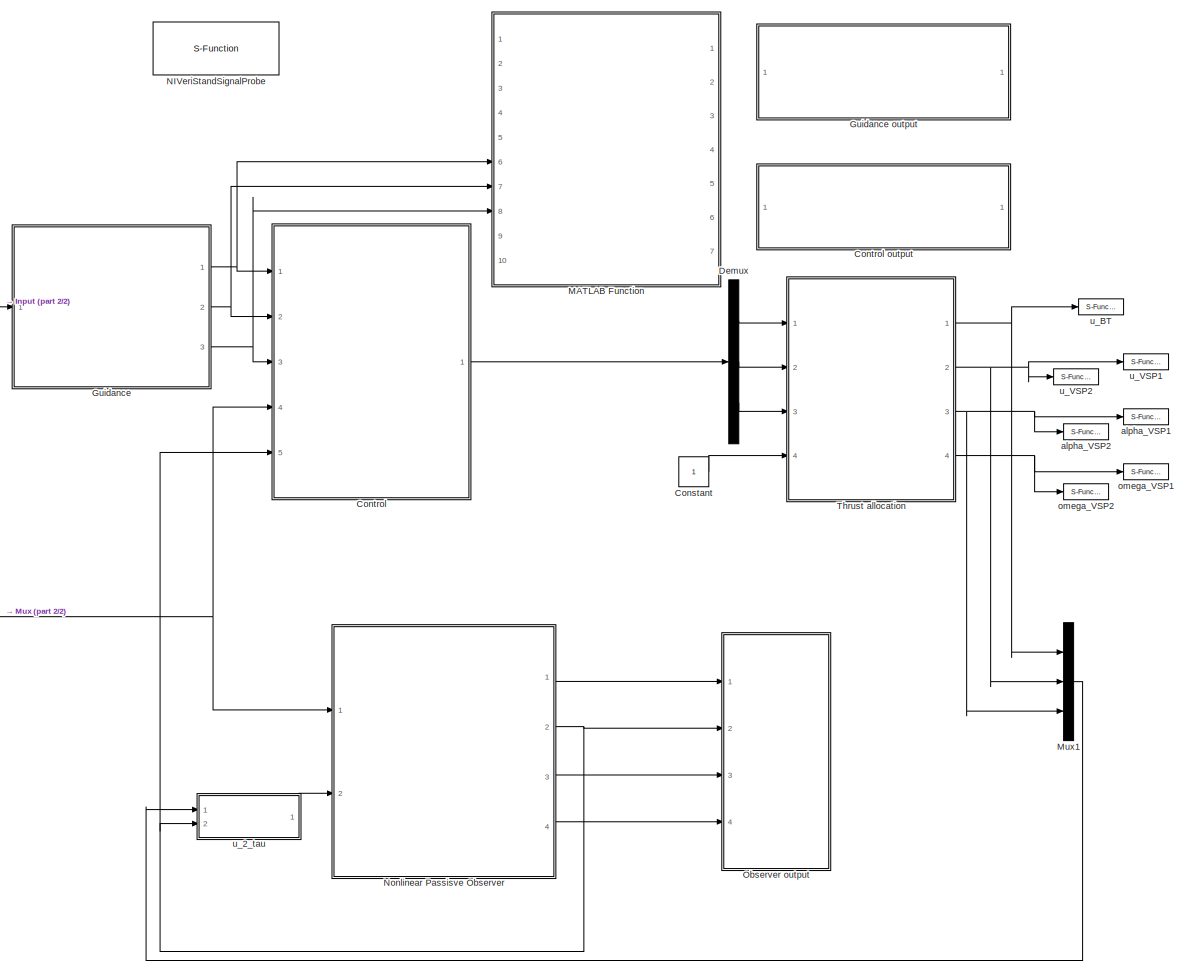
[diagram: root canvas - part 1/2, most of the canvas]
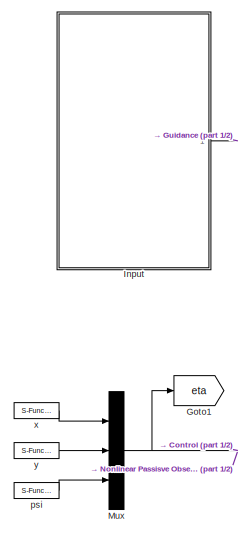
[diagram: root canvas - part 2/2, middle left region]
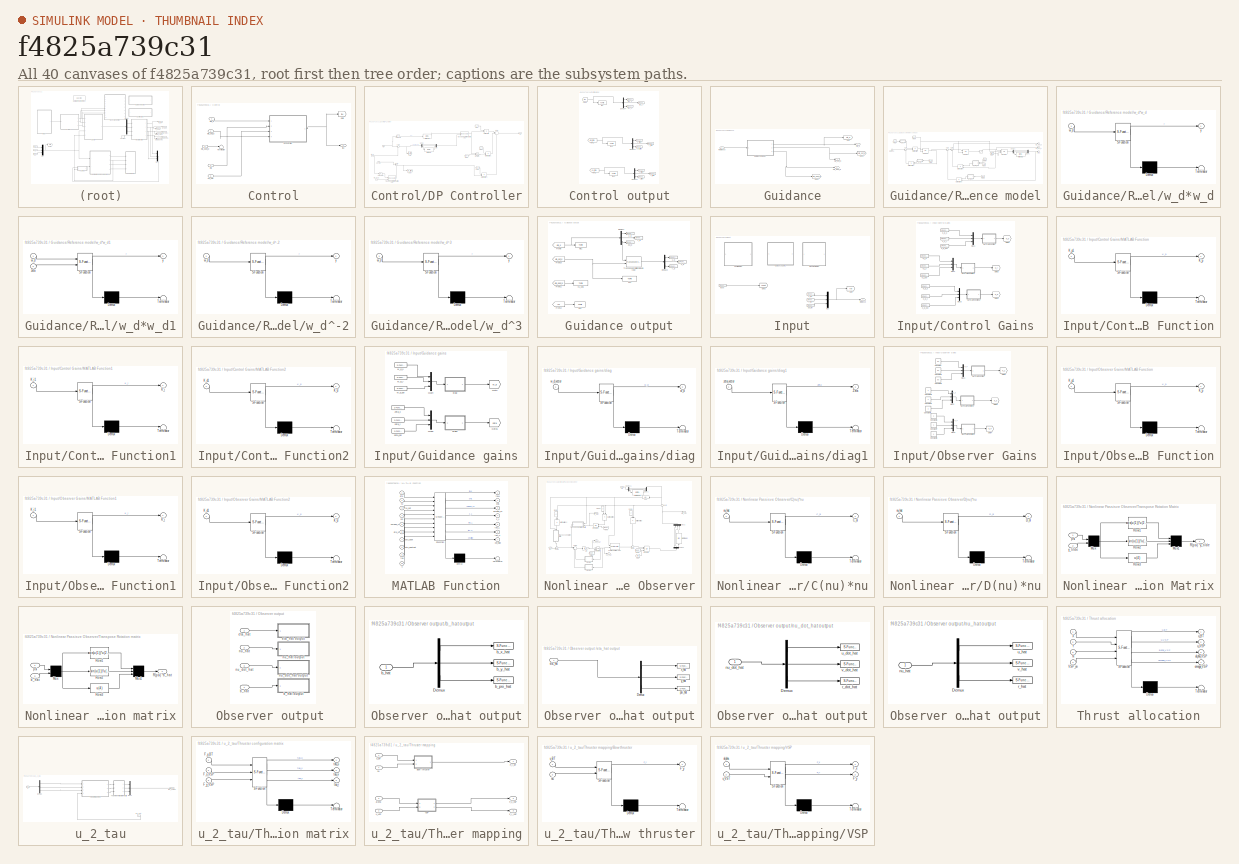
[diagram: thumbnail index - all 40 canvases of the model, root first then tree order]
MODEL slx_f4825a739c31
KIND model
BLOCK [Constant] Constant
BLOCK [SubSystem] Control
  Ports = [5, 1]
  RequestExecContextInheritance = off
BLOCK [SubSystem] Control output
  Ports = []
  RequestExecContextInheritance = off
BLOCK [Demux] Control output/Demux1
  DisplayOption = bar
  Outputs = 3
  Ports = [1, 3]
BLOCK [Demux] Control output/Demux2
  DisplayOption = bar
  Outputs = 3
  Ports = [1, 3]
BLOCK [Demux] Control output/Demux4
  DisplayOption = bar
  Outputs = 3
  Ports = [1, 3]
BLOCK [From] Control output/From1
  GotoTag = eta_tilde
  TagVisibility = global
BLOCK [From] Control output/From2
  GotoTag = nu_tilde
  TagVisibility = global
BLOCK [From] Control output/From3
  GotoTag = tau
  TagVisibility = global
BLOCK [S-Function] Control output/psi_tilde
  CopyFcn = NIVeriStand_MDL_functions('', 'IO_copy');
  DeleteFcn = NIVeriStand_MDL_functions('', 'IO_delete');
  EnableBusSupport = off
  FunctionName = NIVeriStandIO
  MoveFcn = set_param(gcb, 'Mask', 'on');
  Parameters = width dtype portnum stime stype btype
  Ports = [1]
  Priority = 4
BLOCK [S-Function] Control output/r_tilde
  CopyFcn = NIVeriStand_MDL_functions('', 'IO_copy');
  DeleteFcn = NIVeriStand_MDL_functions('', 'IO_delete');
  EnableBusSupport = off
  FunctionName = NIVeriStandIO
  MoveFcn = set_param(gcb, 'Mask', 'on');
  Parameters = width dtype portnum stime stype btype
  Ports = [1]
  Priority = 7
BLOCK [ToFile] Control output/tau
  Commented = on
  Filename = tau.mat
  MatrixName = tau
  Ports = [1]
BLOCK [ToFile] Control output/tau1
  Commented = on
  Filename = eta_tilde.mat
  MatrixName = eta_tidle
  Ports = [1]
BLOCK [ToFile] Control output/tau2
  Commented = on
  Filename = eta_tilde.mat
  MatrixName = eta_tidle
  Ports = [1]
BLOCK [S-Function] Control output/tau_N
  CopyFcn = NIVeriStand_MDL_functions('', 'IO_copy');
  DeleteFcn = NIVeriStand_MDL_functions('', 'IO_delete');
  EnableBusSupport = off
  FunctionName = NIVeriStandIO
  MoveFcn = set_param(gcb, 'Mask', 'on');
  Parameters = width dtype portnum stime stype btype
  Ports = [1]
  Priority = 1
BLOCK [S-Function] Control output/tau_X
  CopyFcn = NIVeriStand_MDL_functions('', 'IO_copy');
  DeleteFcn = NIVeriStand_MDL_functions('', 'IO_delete');
  EnableBusSupport = off
  FunctionName = NIVeriStandIO
  MoveFcn = set_param(gcb, 'Mask', 'on');
  Parameters = width dtype portnum stime stype btype
  Ports = [1]
  Priority = 2
BLOCK [S-Function] Control output/tau_Y
  CopyFcn = NIVeriStand_MDL_functions('', 'IO_copy');
  DeleteFcn = NIVeriStand_MDL_functions('', 'IO_delete');
  EnableBusSupport = off
  FunctionName = NIVeriStandIO
  MoveFcn = set_param(gcb, 'Mask', 'on');
  Parameters = width dtype portnum stime stype btype
  Ports = [1]
  Priority = 3
BLOCK [S-Function] Control output/u_tilde
  CopyFcn = NIVeriStand_MDL_functions('', 'IO_copy');
  DeleteFcn = NIVeriStand_MDL_functions('', 'IO_delete');
  EnableBusSupport = off
  FunctionName = NIVeriStandIO
  MoveFcn = set_param(gcb, 'Mask', 'on');
  Parameters = width dtype portnum stime stype btype
  Ports = [1]
  Priority = 8
BLOCK [S-Function] Control output/v_tilde
  CopyFcn = NIVeriStand_MDL_functions('', 'IO_copy');
  DeleteFcn = NIVeriStand_MDL_functions('', 'IO_delete');
  EnableBusSupport = off
  FunctionName = NIVeriStandIO
  MoveFcn = set_param(gcb, 'Mask', 'on');
  Parameters = width dtype portnum stime stype btype
  Ports = [1]
  Priority = 9
BLOCK [S-Function] Control output/x_tilde
  CopyFcn = NIVeriStand_MDL_functions('', 'IO_copy');
  DeleteFcn = NIVeriStand_MDL_functions('', 'IO_delete');
  EnableBusSupport = off
  FunctionName = NIVeriStandIO
  MoveFcn = set_param(gcb, 'Mask', 'on');
  Parameters = width dtype portnum stime stype btype
  Ports = [1]
  Priority = 5
BLOCK [S-Function] Control output/y_tidle
  CopyFcn = NIVeriStand_MDL_functions('', 'IO_copy');
  DeleteFcn = NIVeriStand_MDL_functions('', 'IO_delete');
  EnableBusSupport = off
  FunctionName = NIVeriStandIO
  MoveFcn = set_param(gcb, 'Mask', 'on');
  Parameters = width dtype portnum stime stype btype
  Ports = [1]
  Priority = 6
BLOCK [SubSystem] Control/DP Controller
  Ports = [4, 1]
  RequestExecContextInheritance = off
BLOCK [Demux] Control/DP Controller/Demux
  DisplayOption = bar
  Outputs = 3
  Ports = [1, 3]
BLOCK [From] Control/DP Controller/From
  GotoTag = K_p
  TagVisibility = global
BLOCK [From] Control/DP Controller/From1
  GotoTag = K_i
  TagVisibility = global
BLOCK [From] Control/DP Controller/From2
  GotoTag = K_d
  TagVisibility = global
BLOCK [From] Control/DP Controller/From3
  GotoTag = reset
  TagVisibility = global
BLOCK [Goto] Control/DP Controller/Goto
  GotoTag = eta_tilde
  TagVisibility = global
BLOCK [Goto] Control/DP Controller/Goto1
  GotoTag = nu_tilde
  TagVisibility = global
BLOCK [Integrator] Control/DP Controller/Integrator
  ExternalReset = either
  Ports = [2, 1]
BLOCK [Product] Control/DP Controller/Matrix Multiply
  InputSameDT = off
  Multiplication = Matrix(*)
  OutDataTypeStr = Inherit: Inherit via internal rule
  Ports = [2, 1]
  RndMeth = Floor
  SaturateOnIntegerOverflow = off
BLOCK [Product] Control/DP Controller/Matrix Multiply1
  InputSameDT = off
  Multiplication = Matrix(*)
  OutDataTypeStr = Inherit: Inherit via internal rule
  Ports = [2, 1]
  RndMeth = Floor
  SaturateOnIntegerOverflow = off
BLOCK [Product] Control/DP Controller/Matrix Multiply2
  InputSameDT = off
  Multiplication = Matrix(*)
  OutDataTypeStr = Inherit: Inherit via internal rule
  Ports = [2, 1]
  RndMeth = Floor
  SaturateOnIntegerOverflow = off
BLOCK [Mux] Control/DP Controller/Mux
  DisplayOption = bar
  Inputs = 3
  Ports = [3, 1]
BLOCK [Sum] Control/DP Controller/Sum2
  IconShape = round
  Inputs = |+-
  Ports = [2, 1]
BLOCK [Sum] Control/DP Controller/Sum3
  IconShape = round
  Inputs = |---
  Ports = [3, 1]
BLOCK [Sum] Control/DP Controller/Sum4
  IconShape = round
  Inputs = |+-
  Ports = [2, 1]
BLOCK [Reference] Control/DP Controller/Transposed rotation matrix in yaw1  REF=marine_gnc/Models/ Kinematics/Transposed rotation  (lib defined in mdl_10d96c221ba8, mdl_45f1105420c6)
 matrix in yaw
  Ports = [2, 1]
  SourceBlock = marine_gnc/Models/ Kinematics/Transposed rotation\n matrix in yaw
BLOCK [Reference] Control/DP Controller/Transposed rotation matrix in yaw2  REF=marine_gnc/Models/ Kinematics/Transposed rotation  (lib defined in mdl_10d96c221ba8, mdl_45f1105420c6)
 matrix in yaw
  Ports = [2, 1]
  SourceBlock = marine_gnc/Models/ Kinematics/Transposed rotation\n matrix in yaw
BLOCK [Reference] Control/DP Controller/[-inf inf] to [-pi pi]  REF=marine_gnc/Utilities/Math Operations/[-inf inf] to [-pi pi]  (lib defined in mdl_10d96c221ba8, mdl_45f1105420c6)
  Ports = [1, 1]
  SourceBlock = marine_gnc/Utilities/Math Operations/[-inf inf] to [-pi pi]
  SourceType = [-inf inf] to [-pi pi]
BLOCK [Reference] Control/DP Controller/[-inf inf] to [-pi pi]1  REF=marine_gnc/Utilities/Math Operations/[-inf inf] to [-pi pi]  (lib defined in mdl_10d96c221ba8, mdl_45f1105420c6)
  Ports = [1, 1]
  SourceBlock = marine_gnc/Utilities/Math Operations/[-inf inf] to [-pi pi]
  SourceType = [-inf inf] to [-pi pi]
BLOCK [Inport] Control/DP Controller/eta
  IconDisplay = Port number
  Port = 2
BLOCK [Inport] Control/DP Controller/eta_d
  IconDisplay = Port number
BLOCK [Inport] Control/DP Controller/eta_dot_d
  IconDisplay = Port number
  Port = 4
BLOCK [Inport] Control/DP Controller/nu_hat
  IconDisplay = Port number
  Port = 3
BLOCK [Outport] Control/DP Controller/tau
  IconDisplay = Port number
  InitialOutput = 0
BLOCK [Fcn] Control/DP Controller/yaw angle
  Expr = u(3)
BLOCK [Fcn] Control/DP Controller/yaw angle1
  Expr = u(3)
BLOCK [Goto] Control/Goto
  GotoTag = tau
  TagVisibility = global
BLOCK [Terminator] Control/Terminator
BLOCK [Inport] Control/eta
  IconDisplay = Port number
  Port = 4
BLOCK [Inport] Control/eta_d
  IconDisplay = Port number
BLOCK [Inport] Control/eta_ddot_d
  IconDisplay = Port number
  Port = 3
BLOCK [Inport] Control/eta_dot_d
  IconDisplay = Port number
  Port = 2
BLOCK [Inport] Control/nu_hat
  IconDisplay = Port number
  Port = 5
BLOCK [Outport] Control/tau
  IconDisplay = Port number
BLOCK [Demux] Demux
  DisplayOption = bar
  Outputs = 3
  Ports = [1, 3]
BLOCK [Goto] Goto1
  GotoTag = eta
  TagVisibility = global
BLOCK [SubSystem] Guidance
  Ports = [1, 3]
  RequestExecContextInheritance = off
BLOCK [SubSystem] Guidance output
  Ports = []
  RequestExecContextInheritance = off
BLOCK [Demux] Guidance output/Demux1
  DisplayOption = bar
  Outputs = 3
  Ports = [1, 3]
BLOCK [Demux] Guidance output/Demux2
  DisplayOption = bar
  Outputs = 3
  Ports = [1, 3]
BLOCK [From] Guidance output/From10
  GotoTag = eta_dot_d
  TagVisibility = global
BLOCK [From] Guidance output/From11
  GotoTag = eta_ddot_d
  TagVisibility = global
BLOCK [From] Guidance output/From12
  GotoTag = ref
  TagVisibility = global
BLOCK [From] Guidance output/From9
  GotoTag = eta_d
  TagVisibility = global
BLOCK [Reference] Guidance output/Transposed rotation matrix in yaw2  REF=marine_gnc/Models/ Kinematics/Transposed rotation  (lib defined in mdl_10d96c221ba8, mdl_45f1105420c6)
 matrix in yaw
  Ports = [2, 1]
  SourceBlock = marine_gnc/Models/ Kinematics/Transposed rotation\n matrix in yaw
BLOCK [ToFile] Guidance output/eta1
  Commented = on
  Filename = eta_d.mat
  MatrixName = eta_d
  Ports = [1]
BLOCK [ToFile] Guidance output/eta2
  Commented = on
  Filename = ref.mat
  MatrixName = ref
  Ports = [1]
BLOCK [ToFile] Guidance output/nu 1
  Commented = on
  Filename = eta_dot_d.mat
  MatrixName = eta_dot_d
  Ports = [1]
BLOCK [ToFile] Guidance output/nu_dot1
  Commented = on
  Filename = eta_ddot_d.mat
  MatrixName = eta_ddot_d
  Ports = [1]
BLOCK [S-Function] Guidance output/psi_d
  CopyFcn = NIVeriStand_MDL_functions('', 'IO_copy');
  DeleteFcn = NIVeriStand_MDL_functions('', 'IO_delete');
  EnableBusSupport = off
  FunctionName = NIVeriStandIO
  MoveFcn = set_param(gcb, 'Mask', 'on');
  Parameters = width dtype portnum stime stype btype
  Ports = [1]
  Priority = 3
BLOCK [S-Function] Guidance output/r_d
  CopyFcn = NIVeriStand_MDL_functions('', 'IO_copy');
  DeleteFcn = NIVeriStand_MDL_functions('', 'IO_delete');
  EnableBusSupport = off
  FunctionName = NIVeriStandIO
  MoveFcn = set_param(gcb, 'Mask', 'on');
  Parameters = width dtype portnum stime stype btype
  Ports = [1]
  Priority = 4
BLOCK [S-Function] Guidance output/u_d
  CopyFcn = NIVeriStand_MDL_functions('', 'IO_copy');
  DeleteFcn = NIVeriStand_MDL_functions('', 'IO_delete');
  EnableBusSupport = off
  FunctionName = NIVeriStandIO
  MoveFcn = set_param(gcb, 'Mask', 'on');
  Parameters = width dtype portnum stime stype btype
  Ports = [1]
  Priority = 5
BLOCK [S-Function] Guidance output/v_d
  CopyFcn = NIVeriStand_MDL_functions('', 'IO_copy');
  DeleteFcn = NIVeriStand_MDL_functions('', 'IO_delete');
  EnableBusSupport = off
  FunctionName = NIVeriStandIO
  MoveFcn = set_param(gcb, 'Mask', 'on');
  Parameters = width dtype portnum stime stype btype
  Ports = [1]
  Priority = 6
BLOCK [S-Function] Guidance output/x_d
  CopyFcn = NIVeriStand_MDL_functions('', 'IO_copy');
  DeleteFcn = NIVeriStand_MDL_functions('', 'IO_delete');
  EnableBusSupport = off
  FunctionName = NIVeriStandIO
  MoveFcn = set_param(gcb, 'Mask', 'on');
  Parameters = width dtype portnum stime stype btype
  Ports = [1]
  Priority = 1
BLOCK [S-Function] Guidance output/y_d
  CopyFcn = NIVeriStand_MDL_functions('', 'IO_copy');
  DeleteFcn = NIVeriStand_MDL_functions('', 'IO_delete');
  EnableBusSupport = off
  FunctionName = NIVeriStandIO
  MoveFcn = set_param(gcb, 'Mask', 'on');
  Parameters = width dtype portnum stime stype btype
  Ports = [1]
  Priority = 2
BLOCK [Goto] Guidance/Goto
  GotoTag = eta_d
  TagVisibility = global
BLOCK [Goto] Guidance/Goto1
  GotoTag = eta_dot_d
  TagVisibility = global
BLOCK [Goto] Guidance/Goto2
  GotoTag = eta_ddot_d
  TagVisibility = global
BLOCK [Inport] Guidance/Reference 
  IconDisplay = Port number
BLOCK [SubSystem] Guidance/Reference model
  Ports = [1, 3]
  RequestExecContextInheritance = off
BLOCK [Saturate] Guidance/Reference model/       
  Commented = through
  InputPortMap = u0
  LowerLimit = -[0.3 0.1 1]
  Ports = [1, 1]
  UpperLimit = [0.3 0.1 1]
BLOCK [Demux] Guidance/Reference model/Demux1
  DisplayOption = bar
  Outputs = 3
  Ports = [1, 3]
BLOCK [From] Guidance/Reference model/From
  GotoTag = eta
  TagVisibility = global
BLOCK [From] Guidance/Reference model/From1
  GotoTag = reset
  TagVisibility = global
BLOCK [From] Guidance/Reference model/From2
  GotoTag = w_d
  TagVisibility = global
BLOCK [From] Guidance/Reference model/From3
  GotoTag = w_d
  TagVisibility = global
BLOCK [From] Guidance/Reference model/From4
  GotoTag = w_d
  TagVisibility = global
BLOCK [From] Guidance/Reference model/From5
  GotoTag = w_d
  TagVisibility = global
BLOCK [From] Guidance/Reference model/From6
  GotoTag = zeta
  TagVisibility = global
BLOCK [Integrator] Guidance/Reference model/Integrator1
  ExternalReset = either
  InitialConditionSource = external
  Ports = [3, 1]
BLOCK [Integrator] Guidance/Reference model/Integrator2
  ExternalReset = either
  Ports = [2, 1]
BLOCK [Integrator] Guidance/Reference model/Integrator3
  ExternalReset = either
  Ports = [2, 1]
BLOCK [Product] Guidance/Reference model/Matrix Multiply
  InputSameDT = off
  Multiplication = Matrix(*)
  OutDataTypeStr = Inherit: Inherit via internal rule
  Ports = [2, 1]
  RndMeth = Floor
  SaturateOnIntegerOverflow = off
BLOCK [Product] Guidance/Reference model/Matrix Multiply1
  InputSameDT = off
  Multiplication = Matrix(*)
  OutDataTypeStr = Inherit: Inherit via internal rule
  Ports = [2, 1]
  RndMeth = Floor
  SaturateOnIntegerOverflow = off
BLOCK [Product] Guidance/Reference model/Matrix Multiply2
  InputSameDT = off
  Multiplication = Matrix(*)
  OutDataTypeStr = Inherit: Inherit via internal rule
  Ports = [2, 1]
  RndMeth = Floor
  SaturateOnIntegerOverflow = off
BLOCK [Product] Guidance/Reference model/Matrix Multiply5
  InputSameDT = off
  Multiplication = Matrix(*)
  OutDataTypeStr = Inherit: Inherit via internal rule
  Ports = [2, 1]
  RndMeth = Floor
  SaturateOnIntegerOverflow = off
BLOCK [Mux] Guidance/Reference model/Mux1
  DisplayOption = bar
  Inputs = 3
  Ports = [3, 1]
BLOCK [Sum] Guidance/Reference model/Sum
  IconShape = round
  InputSameDT = off
  Inputs = |+-
  OutDataTypeStr = Inherit: Inherit via internal rule
  Ports = [2, 1]
  SaturateOnIntegerOverflow = off
BLOCK [Sum] Guidance/Reference model/Sum2
  IconShape = round
  Inputs = |+-
  Ports = [2, 1]
BLOCK [Sum] Guidance/Reference model/Sum5
  IconShape = round
  Inputs = |+-
  Ports = [2, 1]
BLOCK [Reference] Guidance/Reference model/[-inf inf] to [-pi pi]1  REF=marine_gnc/Utilities/Math Operations/[-inf inf] to [-pi pi]  (lib defined in mdl_10d96c221ba8, mdl_45f1105420c6)
  Ports = [1, 1]
  SourceBlock = marine_gnc/Utilities/Math Operations/[-inf inf] to [-pi pi]
  SourceType = [-inf inf] to [-pi pi]
BLOCK [Outport] Guidance/Reference model/eta_d
  IconDisplay = Port number
  InitialOutput = 0
BLOCK [Outport] Guidance/Reference model/eta_ddot_d
  IconDisplay = Port number
  InitialOutput = 0
  Port = 3
BLOCK [Outport] Guidance/Reference model/eta_dot_d
  IconDisplay = Port number
  InitialOutput = 0
  Port = 2
BLOCK [Inport] Guidance/Reference model/reference
  IconDisplay = Port number
BLOCK [SubSystem] Guidance/Reference model/w_d*w_d
  ErrorFcn = Stateflow.Translate.translate
  PermitHierarchicalResolution = ExplicitOnly
  Ports = [1, 1]
  RequestExecContextInheritance = off
  SFBlockType = MATLAB Function
  TreatAsAtomicUnit = on
BLOCK [Demux] Guidance/Reference model/w_d*w_d/ Demux 
  Outputs = 1
  Ports = [1, 1]
BLOCK [S-Function] Guidance/Reference model/w_d*w_d/ SFunction 
  EnableBusSupport = on
  FunctionName = sf_sfun
  PortCounts = [1 2]
  Ports = [1, 2]
  Tag = Stateflow S-Function ctrl_DP_basic_matlab 3
BLOCK [Terminator] Guidance/Reference model/w_d*w_d/ Terminator 
BLOCK [Inport] Guidance/Reference model/w_d*w_d/w_d
  IconDisplay = Port number
BLOCK [Outport] Guidance/Reference model/w_d*w_d/y
  IconDisplay = Port number
BLOCK [SubSystem] Guidance/Reference model/w_d*w_d1
  ErrorFcn = Stateflow.Translate.translate
  PermitHierarchicalResolution = ExplicitOnly
  Ports = [2, 1]
  RequestExecContextInheritance = off
  SFBlockType = MATLAB Function
  TreatAsAtomicUnit = on
BLOCK [Demux] Guidance/Reference model/w_d*w_d1/ Demux 
  Outputs = 1
  Ports = [1, 1]
BLOCK [S-Function] Guidance/Reference model/w_d*w_d1/ SFunction 
  EnableBusSupport = on
  FunctionName = sf_sfun
  PortCounts = [2 2]
  Ports = [2, 2]
  Tag = Stateflow S-Function ctrl_DP_basic_matlab 4
BLOCK [Terminator] Guidance/Reference model/w_d*w_d1/ Terminator 
BLOCK [Inport] Guidance/Reference model/w_d*w_d1/w_d
  IconDisplay = Port number
BLOCK [Outport] Guidance/Reference model/w_d*w_d1/y
  IconDisplay = Port number
BLOCK [Inport] Guidance/Reference model/w_d*w_d1/zeta
  IconDisplay = Port number
  Port = 2
BLOCK [SubSystem] Guidance/Reference model/w_d^-2
  ErrorFcn = Stateflow.Translate.translate
  PermitHierarchicalResolution = ExplicitOnly
  Ports = [1, 1]
  RequestExecContextInheritance = off
  SFBlockType = MATLAB Function
  TreatAsAtomicUnit = on
BLOCK [Demux] Guidance/Reference model/w_d^-2/ Demux 
  Outputs = 1
  Ports = [1, 1]
BLOCK [S-Function] Guidance/Reference model/w_d^-2/ SFunction 
  EnableBusSupport = on
  FunctionName = sf_sfun
  PortCounts = [1 2]
  Ports = [1, 2]
  Tag = Stateflow S-Function ctrl_DP_basic_matlab 2
BLOCK [Terminator] Guidance/Reference model/w_d^-2/ Terminator 
BLOCK [Inport] Guidance/Reference model/w_d^-2/w_d
  IconDisplay = Port number
BLOCK [Outport] Guidance/Reference model/w_d^-2/y
  IconDisplay = Port number
BLOCK [SubSystem] Guidance/Reference model/w_d^3
  ErrorFcn = Stateflow.Translate.translate
  PermitHierarchicalResolution = ExplicitOnly
  Ports = [1, 1]
  RequestExecContextInheritance = off
  SFBlockType = MATLAB Function
  TreatAsAtomicUnit = on
BLOCK [Demux] Guidance/Reference model/w_d^3/ Demux 
  Outputs = 1
  Ports = [1, 1]
BLOCK [S-Function] Guidance/Reference model/w_d^3/ SFunction 
  EnableBusSupport = on
  FunctionName = sf_sfun
  PortCounts = [1 2]
  Ports = [1, 2]
  Tag = Stateflow S-Function ctrl_DP_basic_matlab 5
BLOCK [Terminator] Guidance/Reference model/w_d^3/ Terminator 
BLOCK [Inport] Guidance/Reference model/w_d^3/w_d
  IconDisplay = Port number
BLOCK [Outport] Guidance/Reference model/w_d^3/y
  IconDisplay = Port number
BLOCK [Outport] Guidance/eta_d
  IconDisplay = Port number
BLOCK [Outport] Guidance/eta_ddot_d
  IconDisplay = Port number
  Port = 3
BLOCK [Outport] Guidance/eta_dot_d
  IconDisplay = Port number
  Port = 2
BLOCK [SubSystem] Input
  Ports = [0, 1]
  RequestExecContextInheritance = off
BLOCK [SubSystem] Input/Control Gains
  Ports = []
  RequestExecContextInheritance = off
BLOCK [Goto] Input/Control Gains/Goto2
  GotoTag = K_p
  TagVisibility = global
BLOCK [Goto] Input/Control Gains/Goto3
  GotoTag = K_i
  TagVisibility = global
BLOCK [Goto] Input/Control Gains/Goto4
  GotoTag = K_d
  TagVisibility = global
BLOCK [S-Function] Input/Control Gains/K_d_psi
  CopyFcn = NIVeriStand_MDL_functions('', 'IO_copy');
  DeleteFcn = NIVeriStand_MDL_functions('', 'IO_delete');
  EnableBusSupport = off
  FunctionName = NIVeriStandIO
  MoveFcn = set_param(gcb, 'Mask', 'on');
  Parameters = width dtype portnum stime stype btype
  Ports = [0, 1]
  Priority = 7
BLOCK [S-Function] Input/Control Gains/K_d_x
  CopyFcn = NIVeriStand_MDL_functions('', 'IO_copy');
  DeleteFcn = NIVeriStand_MDL_functions('', 'IO_delete');
  EnableBusSupport = off
  FunctionName = NIVeriStandIO
  MoveFcn = set_param(gcb, 'Mask', 'on');
  Parameters = width dtype portnum stime stype btype
  Ports = [0, 1]
  Priority = 8
BLOCK [S-Function] Input/Control Gains/K_d_y
  CopyFcn = NIVeriStand_MDL_functions('', 'IO_copy');
  DeleteFcn = NIVeriStand_MDL_functions('', 'IO_delete');
  EnableBusSupport = off
  FunctionName = NIVeriStandIO
  MoveFcn = set_param(gcb, 'Mask', 'on');
  Parameters = width dtype portnum stime stype btype
  Ports = [0, 1]
  Priority = 9
BLOCK [S-Function] Input/Control Gains/K_i_psi
  CopyFcn = NIVeriStand_MDL_functions('', 'IO_copy');
  DeleteFcn = NIVeriStand_MDL_functions('', 'IO_delete');
  EnableBusSupport = off
  FunctionName = NIVeriStandIO
  MoveFcn = set_param(gcb, 'Mask', 'on');
  Parameters = width dtype portnum stime stype btype
  Ports = [0, 1]
  Priority = 4
BLOCK [S-Function] Input/Control Gains/K_i_x
  CopyFcn = NIVeriStand_MDL_functions('', 'IO_copy');
  DeleteFcn = NIVeriStand_MDL_functions('', 'IO_delete');
  EnableBusSupport = off
  FunctionName = NIVeriStandIO
  MoveFcn = set_param(gcb, 'Mask', 'on');
  Parameters = width dtype portnum stime stype btype
  Ports = [0, 1]
  Priority = 5
BLOCK [S-Function] Input/Control Gains/K_i_y
  CopyFcn = NIVeriStand_MDL_functions('', 'IO_copy');
  DeleteFcn = NIVeriStand_MDL_functions('', 'IO_delete');
  EnableBusSupport = off
  FunctionName = NIVeriStandIO
  MoveFcn = set_param(gcb, 'Mask', 'on');
  Parameters = width dtype portnum stime stype btype
  Ports = [0, 1]
  Priority = 6
BLOCK [S-Function] Input/Control Gains/K_p_psi
  CopyFcn = NIVeriStand_MDL_functions('', 'IO_copy');
  DeleteFcn = NIVeriStand_MDL_functions('', 'IO_delete');
  EnableBusSupport = off
  FunctionName = NIVeriStandIO
  MoveFcn = set_param(gcb, 'Mask', 'on');
  Parameters = width dtype portnum stime stype btype
  Ports = [0, 1]
  Priority = 3
BLOCK [S-Function] Input/Control Gains/K_p_x
  CopyFcn = NIVeriStand_MDL_functions('', 'IO_copy');
  DeleteFcn = NIVeriStand_MDL_functions('', 'IO_delete');
  EnableBusSupport = off
  FunctionName = NIVeriStandIO
  MoveFcn = set_param(gcb, 'Mask', 'on');
  Parameters = width dtype portnum stime stype btype
  Ports = [0, 1]
  Priority = 1
BLOCK [S-Function] Input/Control Gains/K_p_y
  CopyFcn = NIVeriStand_MDL_functions('', 'IO_copy');
  DeleteFcn = NIVeriStand_MDL_functions('', 'IO_delete');
  EnableBusSupport = off
  FunctionName = NIVeriStandIO
  MoveFcn = set_param(gcb, 'Mask', 'on');
  Parameters = width dtype portnum stime stype btype
  Ports = [0, 1]
  Priority = 2
BLOCK [SubSystem] Input/Control Gains/MATLAB Function
  ErrorFcn = Stateflow.Translate.translate
  PermitHierarchicalResolution = ExplicitOnly
  Ports = [1, 1]
  RequestExecContextInheritance = off
  SFBlockType = MATLAB Function
  TreatAsAtomicUnit = on
BLOCK [Demux] Input/Control Gains/MATLAB Function/ Demux 
  Outputs = 1
  Ports = [1, 1]
BLOCK [S-Function] Input/Control Gains/MATLAB Function/ SFunction 
  EnableBusSupport = on
  FunctionName = sf_sfun
  PortCounts = [1 2]
  Ports = [1, 2]
  Tag = Stateflow S-Function ctrl_DP_basic_matlab 16
BLOCK [Terminator] Input/Control Gains/MATLAB Function/ Terminator 
BLOCK [Outport] Input/Control Gains/MATLAB Function/K_p
  IconDisplay = Port number
BLOCK [Inport] Input/Control Gains/MATLAB Function/K_p1
  IconDisplay = Port number
BLOCK [SubSystem] Input/Control Gains/MATLAB Function1
  ErrorFcn = Stateflow.Translate.translate
  PermitHierarchicalResolution = ExplicitOnly
  Ports = [1, 1]
  RequestExecContextInheritance = off
  SFBlockType = MATLAB Function
  TreatAsAtomicUnit = on
BLOCK [Demux] Input/Control Gains/MATLAB Function1/ Demux 
  Outputs = 1
  Ports = [1, 1]
BLOCK [S-Function] Input/Control Gains/MATLAB Function1/ SFunction 
  EnableBusSupport = on
  FunctionName = sf_sfun
  PortCounts = [1 2]
  Ports = [1, 2]
  Tag = Stateflow S-Function ctrl_DP_basic_matlab 17
BLOCK [Terminator] Input/Control Gains/MATLAB Function1/ Terminator 
BLOCK [Outport] Input/Control Gains/MATLAB Function1/K_i
  IconDisplay = Port number
BLOCK [Inport] Input/Control Gains/MATLAB Function1/K_i1
  IconDisplay = Port number
BLOCK [SubSystem] Input/Control Gains/MATLAB Function2
  ErrorFcn = Stateflow.Translate.translate
  PermitHierarchicalResolution = ExplicitOnly
  Ports = [1, 1]
  RequestExecContextInheritance = off
  SFBlockType = MATLAB Function
  TreatAsAtomicUnit = on
BLOCK [Demux] Input/Control Gains/MATLAB Function2/ Demux 
  Outputs = 1
  Ports = [1, 1]
BLOCK [S-Function] Input/Control Gains/MATLAB Function2/ SFunction 
  EnableBusSupport = on
  FunctionName = sf_sfun
  PortCounts = [1 2]
  Ports = [1, 2]
  Tag = Stateflow S-Function ctrl_DP_basic_matlab 18
BLOCK [Terminator] Input/Control Gains/MATLAB Function2/ Terminator 
BLOCK [Outport] Input/Control Gains/MATLAB Function2/K_d
  IconDisplay = Port number
BLOCK [Inport] Input/Control Gains/MATLAB Function2/K_d1
  IconDisplay = Port number
BLOCK [Mux] Input/Control Gains/Mux1
  DisplayOption = bar
  Inputs = 3
  Ports = [3, 1]
BLOCK [Mux] Input/Control Gains/Mux2
  DisplayOption = bar
  Inputs = 3
  Ports = [3, 1]
BLOCK [Mux] Input/Control Gains/Mux3
  DisplayOption = bar
  Inputs = 3
  Ports = [3, 1]
BLOCK [Goto] Input/Goto
  GotoTag = ref
  TagVisibility = global
BLOCK [Goto] Input/Goto3
  GotoTag = reset
  TagVisibility = global
BLOCK [SubSystem] Input/Guidance gains
  Ports = []
  RequestExecContextInheritance = off
BLOCK [Goto] Input/Guidance gains/Goto
  GotoTag = w_d
  TagVisibility = global
BLOCK [Goto] Input/Guidance gains/Goto1
  GotoTag = zeta
  TagVisibility = global
BLOCK [Mux] Input/Guidance gains/Mux4
  DisplayOption = bar
  Inputs = 3
  Ports = [3, 1]
BLOCK [Mux] Input/Guidance gains/Mux5
  DisplayOption = bar
  Inputs = 3
  Ports = [3, 1]
BLOCK [SubSystem] Input/Guidance gains/diag
  ErrorFcn = Stateflow.Translate.translate
  PermitHierarchicalResolution = ExplicitOnly
  Ports = [1, 1]
  RequestExecContextInheritance = off
  SFBlockType = MATLAB Function
  TreatAsAtomicUnit = on
BLOCK [Demux] Input/Guidance gains/diag/ Demux 
  Outputs = 1
  Ports = [1, 1]
BLOCK [S-Function] Input/Guidance gains/diag/ SFunction 
  EnableBusSupport = on
  FunctionName = sf_sfun
  PortCounts = [1 2]
  Ports = [1, 2]
  Tag = Stateflow S-Function ctrl_DP_basic_matlab 24
BLOCK [Terminator] Input/Guidance gains/diag/ Terminator 
BLOCK [Outport] Input/Guidance gains/diag/w_d
  IconDisplay = Port number
BLOCK [Inport] Input/Guidance gains/diag/w_d_vector
  IconDisplay = Port number
BLOCK [SubSystem] Input/Guidance gains/diag1
  ErrorFcn = Stateflow.Translate.translate
  PermitHierarchicalResolution = ExplicitOnly
  Ports = [1, 1]
  RequestExecContextInheritance = off
  SFBlockType = MATLAB Function
  TreatAsAtomicUnit = on
BLOCK [Demux] Input/Guidance gains/diag1/ Demux 
  Outputs = 1
  Ports = [1, 1]
BLOCK [S-Function] Input/Guidance gains/diag1/ SFunction 
  EnableBusSupport = on
  FunctionName = sf_sfun
  PortCounts = [1 2]
  Ports = [1, 2]
  Tag = Stateflow S-Function ctrl_DP_basic_matlab 25
BLOCK [Terminator] Input/Guidance gains/diag1/ Terminator 
BLOCK [Outport] Input/Guidance gains/diag1/Zeta
  IconDisplay = Port number
BLOCK [Inport] Input/Guidance gains/diag1/zeta_vector
  IconDisplay = Port number
BLOCK [S-Function] Input/Guidance gains/w_d_psi
  CopyFcn = NIVeriStand_MDL_functions('', 'IO_copy');
  DeleteFcn = NIVeriStand_MDL_functions('', 'IO_delete');
  EnableBusSupport = off
  FunctionName = NIVeriStandIO
  MoveFcn = set_param(gcb, 'Mask', 'on');
  Parameters = width dtype portnum stime stype btype
  Ports = [0, 1]
  Priority = 3
BLOCK [S-Function] Input/Guidance gains/w_d_x
  CopyFcn = NIVeriStand_MDL_functions('', 'IO_copy');
  DeleteFcn = NIVeriStand_MDL_functions('', 'IO_delete');
  EnableBusSupport = off
  FunctionName = NIVeriStandIO
  MoveFcn = set_param(gcb, 'Mask', 'on');
  Parameters = width dtype portnum stime stype btype
  Ports = [0, 1]
  Priority = 1
BLOCK [S-Function] Input/Guidance gains/w_d_y
  CopyFcn = NIVeriStand_MDL_functions('', 'IO_copy');
  DeleteFcn = NIVeriStand_MDL_functions('', 'IO_delete');
  EnableBusSupport = off
  FunctionName = NIVeriStandIO
  MoveFcn = set_param(gcb, 'Mask', 'on');
  Parameters = width dtype portnum stime stype btype
  Ports = [0, 1]
  Priority = 2
BLOCK [S-Function] Input/Guidance gains/zeta_psi
  CopyFcn = NIVeriStand_MDL_functions('', 'IO_copy');
  DeleteFcn = NIVeriStand_MDL_functions('', 'IO_delete');
  EnableBusSupport = off
  FunctionName = NIVeriStandIO
  MoveFcn = set_param(gcb, 'Mask', 'on');
  Parameters = width dtype portnum stime stype btype
  Ports = [0, 1]
  Priority = 4
BLOCK [S-Function] Input/Guidance gains/zeta_x
  CopyFcn = NIVeriStand_MDL_functions('', 'IO_copy');
  DeleteFcn = NIVeriStand_MDL_functions('', 'IO_delete');
  EnableBusSupport = off
  FunctionName = NIVeriStandIO
  MoveFcn = set_param(gcb, 'Mask', 'on');
  Parameters = width dtype portnum stime stype btype
  Ports = [0, 1]
  Priority = 5
BLOCK [S-Function] Input/Guidance gains/zeta_y
  CopyFcn = NIVeriStand_MDL_functions('', 'IO_copy');
  DeleteFcn = NIVeriStand_MDL_functions('', 'IO_delete');
  EnableBusSupport = off
  FunctionName = NIVeriStandIO
  MoveFcn = set_param(gcb, 'Mask', 'on');
  Parameters = width dtype portnum stime stype btype
  Ports = [0, 1]
  Priority = 6
BLOCK [Mux] Input/Mux
  DisplayOption = bar
  Inputs = 3
  Ports = [3, 1]
BLOCK [SubSystem] Input/Observer Gains
  Ports = []
  RequestExecContextInheritance = off
BLOCK [Constant] Input/Observer Gains/Constant
  Value = 50
BLOCK [Constant] Input/Observer Gains/Constant1
  Value = 50
BLOCK [Constant] Input/Observer Gains/Constant2
  Value = 50
BLOCK [Constant] Input/Observer Gains/Constant3
BLOCK [Constant] Input/Observer Gains/Constant4
BLOCK [Constant] Input/Observer Gains/Constant5
BLOCK [Constant] Input/Observer Gains/Constant6
BLOCK [Constant] Input/Observer Gains/Constant7
BLOCK [Constant] Input/Observer Gains/Constant8
BLOCK [Goto] Input/Observer Gains/Goto2
  GotoTag = K_2
  TagVisibility = global
BLOCK [Goto] Input/Observer Gains/Goto3
  GotoTag = K_3
  TagVisibility = global
BLOCK [Goto] Input/Observer Gains/Goto4
  GotoTag = K_4
  TagVisibility = global
BLOCK [SubSystem] Input/Observer Gains/MATLAB Function
  ErrorFcn = Stateflow.Translate.translate
  PermitHierarchicalResolution = ExplicitOnly
  Ports = [1, 1]
  RequestExecContextInheritance = off
  SFBlockType = MATLAB Function
  TreatAsAtomicUnit = on
BLOCK [Demux] Input/Observer Gains/MATLAB Function/ Demux 
  Outputs = 1
  Ports = [1, 1]
BLOCK [S-Function] Input/Observer Gains/MATLAB Function/ SFunction 
  EnableBusSupport = on
  FunctionName = sf_sfun
  PortCounts = [1 2]
  Ports = [1, 2]
  Tag = Stateflow S-Function ctrl_DP_basic_matlab 29
BLOCK [Terminator] Input/Observer Gains/MATLAB Function/ Terminator 
BLOCK [Outport] Input/Observer Gains/MATLAB Function/K_p
  IconDisplay = Port number
BLOCK [Inport] Input/Observer Gains/MATLAB Function/K_p1
  IconDisplay = Port number
BLOCK [SubSystem] Input/Observer Gains/MATLAB Function1
  ErrorFcn = Stateflow.Translate.translate
  PermitHierarchicalResolution = ExplicitOnly
  Ports = [1, 1]
  RequestExecContextInheritance = off
  SFBlockType = MATLAB Function
  TreatAsAtomicUnit = on
BLOCK [Demux] Input/Observer Gains/MATLAB Function1/ Demux 
  Outputs = 1
  Ports = [1, 1]
BLOCK [S-Function] Input/Observer Gains/MATLAB Function1/ SFunction 
  EnableBusSupport = on
  FunctionName = sf_sfun
  PortCounts = [1 2]
  Ports = [1, 2]
  Tag = Stateflow S-Function ctrl_DP_basic_matlab 30
BLOCK [Terminator] Input/Observer Gains/MATLAB Function1/ Terminator 
BLOCK [Outport] Input/Observer Gains/MATLAB Function1/K_i
  IconDisplay = Port number
BLOCK [Inport] Input/Observer Gains/MATLAB Function1/K_i1
  IconDisplay = Port number
BLOCK [SubSystem] Input/Observer Gains/MATLAB Function2
  ErrorFcn = Stateflow.Translate.translate
  PermitHierarchicalResolution = ExplicitOnly
  Ports = [1, 1]
  RequestExecContextInheritance = off
  SFBlockType = MATLAB Function
  TreatAsAtomicUnit = on
BLOCK [Demux] Input/Observer Gains/MATLAB Function2/ Demux 
  Outputs = 1
  Ports = [1, 1]
BLOCK [S-Function] Input/Observer Gains/MATLAB Function2/ SFunction 
  EnableBusSupport = on
  FunctionName = sf_sfun
  PortCounts = [1 2]
  Ports = [1, 2]
  Tag = Stateflow S-Function ctrl_DP_basic_matlab 31
BLOCK [Terminator] Input/Observer Gains/MATLAB Function2/ Terminator 
BLOCK [Outport] Input/Observer Gains/MATLAB Function2/K_d
  IconDisplay = Port number
BLOCK [Inport] Input/Observer Gains/MATLAB Function2/K_d1
  IconDisplay = Port number
BLOCK [Mux] Input/Observer Gains/Mux1
  DisplayOption = bar
  Inputs = 3
  Ports = [3, 1]
BLOCK [Mux] Input/Observer Gains/Mux2
  DisplayOption = bar
  Inputs = 3
  Ports = [3, 1]
BLOCK [Mux] Input/Observer Gains/Mux3
  DisplayOption = bar
  Inputs = 3
  Ports = [3, 1]
BLOCK [S-Function] Input/psi_ref
  CopyFcn = NIVeriStand_MDL_functions('', 'IO_copy');
  DeleteFcn = NIVeriStand_MDL_functions('', 'IO_delete');
  EnableBusSupport = off
  FunctionName = NIVeriStandIO
  MoveFcn = set_param(gcb, 'Mask', 'on');
  Parameters = width dtype portnum stime stype btype
  Ports = [0, 1]
  Priority = 2
BLOCK [Outport] Input/reference
  IconDisplay = Port number
BLOCK [S-Function] Input/reset
  CopyFcn = NIVeriStand_MDL_functions('', 'IO_copy');
  DeleteFcn = NIVeriStand_MDL_functions('', 'IO_delete');
  EnableBusSupport = off
  FunctionName = NIVeriStandIO
  MoveFcn = set_param(gcb, 'Mask', 'on');
  Parameters = width dtype portnum stime stype btype
  Ports = [0, 1]
  Priority = 1
BLOCK [S-Function] Input/x_ref
  CopyFcn = NIVeriStand_MDL_functions('', 'IO_copy');
  DeleteFcn = NIVeriStand_MDL_functions('', 'IO_delete');
  EnableBusSupport = off
  FunctionName = NIVeriStandIO
  MoveFcn = set_param(gcb, 'Mask', 'on');
  Parameters = width dtype portnum stime stype btype
  Ports = [0, 1]
  Priority = 3
BLOCK [S-Function] Input/y_ref
  CopyFcn = NIVeriStand_MDL_functions('', 'IO_copy');
  DeleteFcn = NIVeriStand_MDL_functions('', 'IO_delete');
  EnableBusSupport = off
  FunctionName = NIVeriStandIO
  MoveFcn = set_param(gcb, 'Mask', 'on');
  Parameters = width dtype portnum stime stype btype
  Ports = [0, 1]
  Priority = 4
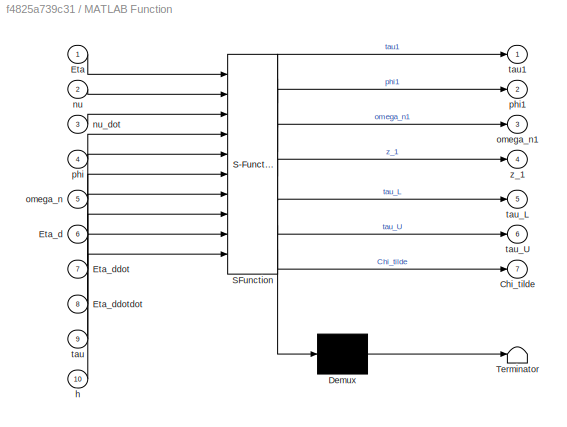
BLOCK [SubSystem] MATLAB Function
  ErrorFcn = Stateflow.Translate.translate
  PermitHierarchicalResolution = ExplicitOnly
  Ports = [10, 7]
  RequestExecContextInheritance = off
  SFBlockType = MATLAB Function
  TreatAsAtomicUnit = on
BLOCK [Demux] MATLAB Function/ Demux 
  Outputs = 1
  Ports = [1, 1]
BLOCK [S-Function] MATLAB Function/ SFunction 
  EnableBusSupport = off
  FunctionName = sf_sfun
  PortCounts = [10 8]
  Ports = [10, 8]
  Tag = Stateflow S-Function ctrl_DP_basic_matlab 6
BLOCK [Terminator] MATLAB Function/ Terminator 
BLOCK [Outport] MATLAB Function/Chi_tilde
  IconDisplay = Port number
  Port = 7
BLOCK [Inport] MATLAB Function/Eta
  IconDisplay = Port number
BLOCK [Inport] MATLAB Function/Eta_d
  IconDisplay = Port number
  Port = 6
BLOCK [Inport] MATLAB Function/Eta_ddot
  IconDisplay = Port number
  Port = 7
BLOCK [Inport] MATLAB Function/Eta_ddotdot
  IconDisplay = Port number
  Port = 8
BLOCK [Inport] MATLAB Function/h
  IconDisplay = Port number
  Port = 10
BLOCK [Inport] MATLAB Function/nu
  IconDisplay = Port number
  Port = 2
BLOCK [Inport] MATLAB Function/nu_dot
  IconDisplay = Port number
  Port = 3
BLOCK [Inport] MATLAB Function/omega_n
  IconDisplay = Port number
  Port = 5
BLOCK [Outport] MATLAB Function/omega_n1
  IconDisplay = Port number
  Port = 3
BLOCK [Inport] MATLAB Function/phi
  IconDisplay = Port number
  Port = 4
BLOCK [Outport] MATLAB Function/phi1
  IconDisplay = Port number
  Port = 2
BLOCK [Inport] MATLAB Function/tau
  IconDisplay = Port number
  Port = 9
BLOCK [Outport] MATLAB Function/tau1
  IconDisplay = Port number
BLOCK [Outport] MATLAB Function/tau_L
  IconDisplay = Port number
  Port = 5
BLOCK [Outport] MATLAB Function/tau_U
  IconDisplay = Port number
  Port = 6
BLOCK [Outport] MATLAB Function/z_1
  IconDisplay = Port number
  Port = 4
BLOCK [Mux] Mux
  DisplayOption = bar
  Inputs = 3
  Ports = [3, 1]
BLOCK [Mux] Mux1
  DisplayOption = bar
  Inputs = 3
  Ports = [3, 1]
BLOCK [S-Function] NIVeriStandSignalProbe
  EnableBusSupport = off
  FunctionName = NIVeriStandSignalProbe
  Parameters = 1
  Ports = []
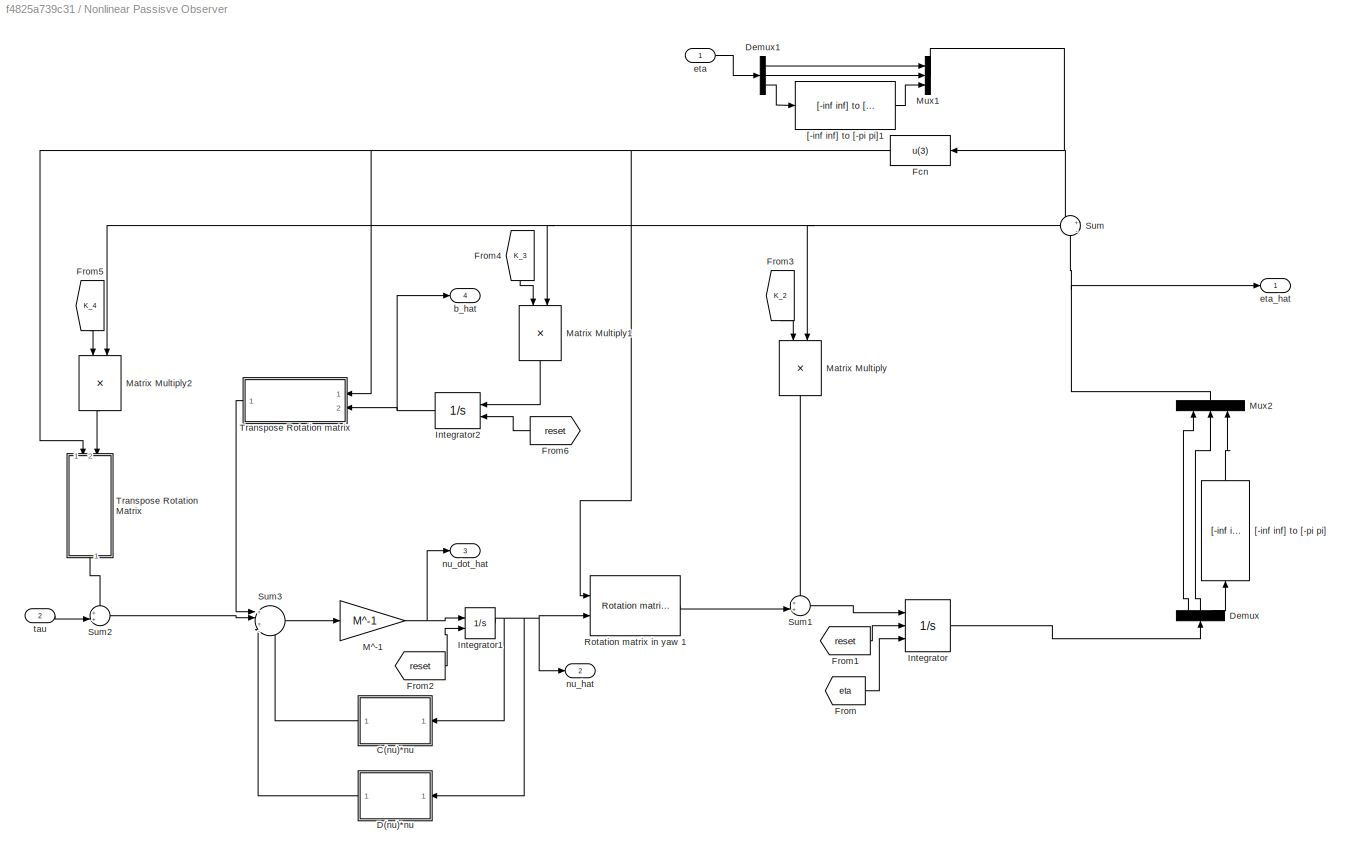
BLOCK [SubSystem] Nonlinear Passisve Observer
  Ports = [2, 4]
  RequestExecContextInheritance = off
BLOCK [SubSystem] Nonlinear Passisve Observer/C(nu)*nu
  ErrorFcn = Stateflow.Translate.translate
  PermitHierarchicalResolution = ExplicitOnly
  Ports = [1, 1]
  RequestExecContextInheritance = off
  SFBlockType = MATLAB Function
  TreatAsAtomicUnit = on
BLOCK [Demux] Nonlinear Passisve Observer/C(nu)*nu/ Demux 
  Outputs = 1
  Ports = [1, 1]
BLOCK [S-Function] Nonlinear Passisve Observer/C(nu)*nu/ SFunction 
  EnableBusSupport = on
  FunctionName = sf_sfun
  PortCounts = [1 2]
  Ports = [1, 2]
  Tag = Stateflow S-Function ctrl_DP_basic_matlab 15
BLOCK [Terminator] Nonlinear Passisve Observer/C(nu)*nu/ Terminator 
BLOCK [Outport] Nonlinear Passisve Observer/C(nu)*nu/C_nl
  IconDisplay = Port number
BLOCK [Inport] Nonlinear Passisve Observer/C(nu)*nu/nu_hat
  IconDisplay = Port number
BLOCK [SubSystem] Nonlinear Passisve Observer/D(nu)*nu
  ErrorFcn = Stateflow.Translate.translate
  PermitHierarchicalResolution = ExplicitOnly
  Ports = [1, 1]
  RequestExecContextInheritance = off
  SFBlockType = MATLAB Function
  TreatAsAtomicUnit = on
BLOCK [Demux] Nonlinear Passisve Observer/D(nu)*nu/ Demux 
  Outputs = 1
  Ports = [1, 1]
BLOCK [S-Function] Nonlinear Passisve Observer/D(nu)*nu/ SFunction 
  EnableBusSupport = on
  FunctionName = sf_sfun
  PortCounts = [1 2]
  Ports = [1, 2]
  Tag = Stateflow S-Function ctrl_DP_basic_matlab 14
BLOCK [Terminator] Nonlinear Passisve Observer/D(nu)*nu/ Terminator 
BLOCK [Outport] Nonlinear Passisve Observer/D(nu)*nu/D_nl
  IconDisplay = Port number
BLOCK [Inport] Nonlinear Passisve Observer/D(nu)*nu/nu_hat
  IconDisplay = Port number
BLOCK [Demux] Nonlinear Passisve Observer/Demux
  DisplayOption = bar
  Outputs = 3
  Ports = [1, 3]
BLOCK [Demux] Nonlinear Passisve Observer/Demux1
  DisplayOption = bar
  Outputs = 3
  Ports = [1, 3]
BLOCK [Fcn] Nonlinear Passisve Observer/Fcn
  Expr = u(3)
BLOCK [From] Nonlinear Passisve Observer/From
  GotoTag = eta
  TagVisibility = global
BLOCK [From] Nonlinear Passisve Observer/From1
  GotoTag = reset
  TagVisibility = global
BLOCK [From] Nonlinear Passisve Observer/From2
  GotoTag = reset
  TagVisibility = global
BLOCK [From] Nonlinear Passisve Observer/From3
  GotoTag = K_2
  TagVisibility = global
BLOCK [From] Nonlinear Passisve Observer/From4
  GotoTag = K_3
  TagVisibility = global
BLOCK [From] Nonlinear Passisve Observer/From5
  GotoTag = K_4
  TagVisibility = global
BLOCK [From] Nonlinear Passisve Observer/From6
  GotoTag = reset
  TagVisibility = global
BLOCK [Integrator] Nonlinear Passisve Observer/Integrator
  ExternalReset = either
  InitialConditionSource = external
  Ports = [3, 1]
BLOCK [Integrator] Nonlinear Passisve Observer/Integrator1
  ExternalReset = either
  InitialCondition = [0 0 0]'
  Ports = [2, 1]
BLOCK [Integrator] Nonlinear Passisve Observer/Integrator2
  ExternalReset = either
  InitialCondition = [0 0 0]'
  Ports = [2, 1]
BLOCK [Gain] Nonlinear Passisve Observer/M^-1
  Gain = M^-1
  Multiplication = Matrix(K*u)
  OutDataTypeStr = Inherit: Inherit via internal rule
  ParamDataTypeStr = Inherit: Inherit via internal rule
  SaturateOnIntegerOverflow = off
BLOCK [Product] Nonlinear Passisve Observer/Matrix Multiply
  InputSameDT = off
  Multiplication = Matrix(*)
  OutDataTypeStr = Inherit: Inherit via internal rule
  Ports = [2, 1]
  RndMeth = Floor
  SaturateOnIntegerOverflow = off
BLOCK [Product] Nonlinear Passisve Observer/Matrix Multiply1
  InputSameDT = off
  Multiplication = Matrix(*)
  OutDataTypeStr = Inherit: Inherit via internal rule
  Ports = [2, 1]
  RndMeth = Floor
  SaturateOnIntegerOverflow = off
BLOCK [Product] Nonlinear Passisve Observer/Matrix Multiply2
  InputSameDT = off
  Multiplication = Matrix(*)
  OutDataTypeStr = Inherit: Inherit via internal rule
  Ports = [2, 1]
  RndMeth = Floor
  SaturateOnIntegerOverflow = off
BLOCK [Mux] Nonlinear Passisve Observer/Mux1
  DisplayOption = bar
  Inputs = 3
  Ports = [3, 1]
BLOCK [Mux] Nonlinear Passisve Observer/Mux2
  DisplayOption = bar
  Inputs = 3
  Ports = [3, 1]
BLOCK [Reference] Nonlinear Passisve Observer/Rotation matrix in yaw 1  REF=marine_gnc/Models/ Kinematics/Rotation matrix  (lib defined in mdl_10d96c221ba8, mdl_45f1105420c6)
in yaw 
  Ports = [2, 1]
  SourceBlock = marine_gnc/Models/ Kinematics/Rotation matrix\nin yaw
BLOCK [Sum] Nonlinear Passisve Observer/Sum
  IconShape = round
  InputSameDT = off
  Inputs = +|-
  OutDataTypeStr = Inherit: Inherit via internal rule
  Ports = [2, 1]
  SaturateOnIntegerOverflow = off
BLOCK [Sum] Nonlinear Passisve Observer/Sum1
  IconShape = round
  InputSameDT = off
  Inputs = ++|
  OutDataTypeStr = Inherit: Inherit via internal rule
  Ports = [2, 1]
  SaturateOnIntegerOverflow = off
BLOCK [Sum] Nonlinear Passisve Observer/Sum2
  IconShape = round
  InputSameDT = off
  Inputs = ++|
  OutDataTypeStr = Inherit: Inherit via internal rule
  Ports = [2, 1]
  SaturateOnIntegerOverflow = off
BLOCK [Sum] Nonlinear Passisve Observer/Sum3
  IconShape = round
  InputSameDT = off
  Inputs = +|+|--
  OutDataTypeStr = Inherit: Inherit via internal rule
  Ports = [4, 1]
  SaturateOnIntegerOverflow = off
BLOCK [SubSystem] Nonlinear Passisve Observer/Transpose Rotation Matrix
  Ports = [2, 1]
  RequestExecContextInheritance = off
BLOCK [Mux] Nonlinear Passisve Observer/Transpose Rotation Matrix/Mux
  Inputs = 2
  Ports = [2, 1]
BLOCK [Mux] Nonlinear Passisve Observer/Transpose Rotation Matrix/Mux1
  Inputs = 3
  Ports = [3, 1]
BLOCK [Outport] Nonlinear Passisve Observer/Transpose Rotation Matrix/R(psi)'*y_tilde
  IconDisplay = Port number
BLOCK [Fcn] Nonlinear Passisve Observer/Transpose Rotation Matrix/Row1
  Expr = cos(u(1))*u(2)+sin(u(1))*u(3)
BLOCK [Fcn] Nonlinear Passisve Observer/Transpose Rotation Matrix/Row2
  Expr = -sin(u(1))*u(2)+cos(u(1))*u(3)
BLOCK [Fcn] Nonlinear Passisve Observer/Transpose Rotation Matrix/Row3
  Expr = u(4)
BLOCK [Inport] Nonlinear Passisve Observer/Transpose Rotation Matrix/psi
  IconDisplay = Port number
BLOCK [Inport] Nonlinear Passisve Observer/Transpose Rotation Matrix/y_tilde
  IconDisplay = Port number
  Port = 2
BLOCK [SubSystem] Nonlinear Passisve Observer/Transpose Rotation matrix
  Ports = [2, 1]
  RequestExecContextInheritance = off
BLOCK [Mux] Nonlinear Passisve Observer/Transpose Rotation matrix/Mux
  Inputs = 2
  Ports = [2, 1]
BLOCK [Mux] Nonlinear Passisve Observer/Transpose Rotation matrix/Mux1
  Inputs = 3
  Ports = [3, 1]
BLOCK [Outport] Nonlinear Passisve Observer/Transpose Rotation matrix/R(psi)'*b_hat
  IconDisplay = Port number
BLOCK [Fcn] Nonlinear Passisve Observer/Transpose Rotation matrix/Row1
  Expr = cos(u(1))*u(2)+sin(u(1))*u(3)
BLOCK [Fcn] Nonlinear Passisve Observer/Transpose Rotation matrix/Row2
  Expr = -sin(u(1))*u(2)+cos(u(1))*u(3)
BLOCK [Fcn] Nonlinear Passisve Observer/Transpose Rotation matrix/Row3
  Expr = u(4)
BLOCK [Inport] Nonlinear Passisve Observer/Transpose Rotation matrix/b_hat
  IconDisplay = Port number
  Port = 2
BLOCK [Inport] Nonlinear Passisve Observer/Transpose Rotation matrix/psi
  IconDisplay = Port number
BLOCK [Reference] Nonlinear Passisve Observer/[-inf inf] to [-pi pi]  REF=marine_gnc/Utilities/Math Operations/[-inf inf] to [-pi pi]  (lib defined in mdl_10d96c221ba8, mdl_45f1105420c6)
  Ports = [1, 1]
  SourceBlock = marine_gnc/Utilities/Math Operations/[-inf inf] to [-pi pi]
  SourceType = [-inf inf] to [-pi pi]
BLOCK [Reference] Nonlinear Passisve Observer/[-inf inf] to [-pi pi]1  REF=marine_gnc/Utilities/Math Operations/[-inf inf] to [-pi pi]  (lib defined in mdl_10d96c221ba8, mdl_45f1105420c6)
  Ports = [1, 1]
  SourceBlock = marine_gnc/Utilities/Math Operations/[-inf inf] to [-pi pi]
  SourceType = [-inf inf] to [-pi pi]
BLOCK [Outport] Nonlinear Passisve Observer/b_hat
  IconDisplay = Port number
  Port = 4
BLOCK [Inport] Nonlinear Passisve Observer/eta
  IconDisplay = Port number
BLOCK [Outport] Nonlinear Passisve Observer/eta_hat
  IconDisplay = Port number
BLOCK [Outport] Nonlinear Passisve Observer/nu_dot_hat
  IconDisplay = Port number
  Port = 3
BLOCK [Outport] Nonlinear Passisve Observer/nu_hat
  IconDisplay = Port number
  Port = 2
BLOCK [Inport] Nonlinear Passisve Observer/tau
  IconDisplay = Port number
  Port = 2
BLOCK [SubSystem] Observer output 
  Ports = [4]
  RequestExecContextInheritance = off
BLOCK [Inport] Observer output /b_hat
  IconDisplay = Port number
  Port = 4
BLOCK [SubSystem] Observer output /b_hat output
  Ports = [1]
  RequestExecContextInheritance = off
BLOCK [Demux] Observer output /b_hat output/Demux
  DisplayOption = bar
  Outputs = 3
  Ports = [1, 3]
BLOCK [Inport] Observer output /b_hat output/b_hat
  IconDisplay = Port number
BLOCK [S-Function] Observer output /b_hat output/b_psi_hat
  CopyFcn = NIVeriStand_MDL_functions('', 'IO_copy');
  DeleteFcn = NIVeriStand_MDL_functions('', 'IO_delete');
  EnableBusSupport = off
  FunctionName = NIVeriStandIO
  MoveFcn = set_param(gcb, 'Mask', 'on');
  Parameters = width dtype portnum stime stype btype
  Ports = [1]
  Priority = 3
BLOCK [S-Function] Observer output /b_hat output/b_x_hat
  CopyFcn = NIVeriStand_MDL_functions('', 'IO_copy');
  DeleteFcn = NIVeriStand_MDL_functions('', 'IO_delete');
  EnableBusSupport = off
  FunctionName = NIVeriStandIO
  MoveFcn = set_param(gcb, 'Mask', 'on');
  Parameters = width dtype portnum stime stype btype
  Ports = [1]
  Priority = 1
BLOCK [S-Function] Observer output /b_hat output/b_y_hat
  CopyFcn = NIVeriStand_MDL_functions('', 'IO_copy');
  DeleteFcn = NIVeriStand_MDL_functions('', 'IO_delete');
  EnableBusSupport = off
  FunctionName = NIVeriStandIO
  MoveFcn = set_param(gcb, 'Mask', 'on');
  Parameters = width dtype portnum stime stype btype
  Ports = [1]
  Priority = 2
BLOCK [Inport] Observer output /eta_hat
  IconDisplay = Port number
BLOCK [SubSystem] Observer output /eta_hat output
  Ports = [1]
  RequestExecContextInheritance = off
BLOCK [Demux] Observer output /eta_hat output/Demux
  DisplayOption = bar
  Outputs = 3
  Ports = [1, 3]
BLOCK [Inport] Observer output /eta_hat output/eta-_hat
  IconDisplay = Port number
BLOCK [S-Function] Observer output /eta_hat output/psi_hat
  CopyFcn = NIVeriStand_MDL_functions('', 'IO_copy');
  DeleteFcn = NIVeriStand_MDL_functions('', 'IO_delete');
  EnableBusSupport = off
  FunctionName = NIVeriStandIO
  MoveFcn = set_param(gcb, 'Mask', 'on');
  Parameters = width dtype portnum stime stype btype
  Ports = [1]
  Priority = 3
BLOCK [S-Function] Observer output /eta_hat output/x_hat
  CopyFcn = NIVeriStand_MDL_functions('', 'IO_copy');
  DeleteFcn = NIVeriStand_MDL_functions('', 'IO_delete');
  EnableBusSupport = off
  FunctionName = NIVeriStandIO
  MoveFcn = set_param(gcb, 'Mask', 'on');
  Parameters = width dtype portnum stime stype btype
  Ports = [1]
  Priority = 1
BLOCK [S-Function] Observer output /eta_hat output/y_hat
  CopyFcn = NIVeriStand_MDL_functions('', 'IO_copy');
  DeleteFcn = NIVeriStand_MDL_functions('', 'IO_delete');
  EnableBusSupport = off
  FunctionName = NIVeriStandIO
  MoveFcn = set_param(gcb, 'Mask', 'on');
  Parameters = width dtype portnum stime stype btype
  Ports = [1]
  Priority = 2
BLOCK [Inport] Observer output /nu_dot_hat
  IconDisplay = Port number
  Port = 3
BLOCK [SubSystem] Observer output /nu_dot_hat output
  Ports = [1]
  RequestExecContextInheritance = off
BLOCK [Demux] Observer output /nu_dot_hat output/Demux
  DisplayOption = bar
  Outputs = 3
  Ports = [1, 3]
BLOCK [Inport] Observer output /nu_dot_hat output/nu_dot_hat
  IconDisplay = Port number
BLOCK [S-Function] Observer output /nu_dot_hat output/r_dot_hat
  CopyFcn = NIVeriStand_MDL_functions('', 'IO_copy');
  DeleteFcn = NIVeriStand_MDL_functions('', 'IO_delete');
  EnableBusSupport = off
  FunctionName = NIVeriStandIO
  MoveFcn = set_param(gcb, 'Mask', 'on');
  Parameters = width dtype portnum stime stype btype
  Ports = [1]
  Priority = 3
BLOCK [S-Function] Observer output /nu_dot_hat output/u_dot_hat
  CopyFcn = NIVeriStand_MDL_functions('', 'IO_copy');
  DeleteFcn = NIVeriStand_MDL_functions('', 'IO_delete');
  EnableBusSupport = off
  FunctionName = NIVeriStandIO
  MoveFcn = set_param(gcb, 'Mask', 'on');
  Parameters = width dtype portnum stime stype btype
  Ports = [1]
  Priority = 1
BLOCK [S-Function] Observer output /nu_dot_hat output/v_dot_hat
  CopyFcn = NIVeriStand_MDL_functions('', 'IO_copy');
  DeleteFcn = NIVeriStand_MDL_functions('', 'IO_delete');
  EnableBusSupport = off
  FunctionName = NIVeriStandIO
  MoveFcn = set_param(gcb, 'Mask', 'on');
  Parameters = width dtype portnum stime stype btype
  Ports = [1]
  Priority = 2
BLOCK [Inport] Observer output /nu_hat
  IconDisplay = Port number
  Port = 2
BLOCK [SubSystem] Observer output /nu_hat output
  Ports = [1]
  RequestExecContextInheritance = off
BLOCK [Demux] Observer output /nu_hat output/Demux
  DisplayOption = bar
  Outputs = 3
  Ports = [1, 3]
BLOCK [Inport] Observer output /nu_hat output/nu_hat
  IconDisplay = Port number
BLOCK [S-Function] Observer output /nu_hat output/r_hat
  CopyFcn = NIVeriStand_MDL_functions('', 'IO_copy');
  DeleteFcn = NIVeriStand_MDL_functions('', 'IO_delete');
  EnableBusSupport = off
  FunctionName = NIVeriStandIO
  MoveFcn = set_param(gcb, 'Mask', 'on');
  Parameters = width dtype portnum stime stype btype
  Ports = [1]
  Priority = 3
BLOCK [S-Function] Observer output /nu_hat output/u_hat
  CopyFcn = NIVeriStand_MDL_functions('', 'IO_copy');
  DeleteFcn = NIVeriStand_MDL_functions('', 'IO_delete');
  EnableBusSupport = off
  FunctionName = NIVeriStandIO
  MoveFcn = set_param(gcb, 'Mask', 'on');
  Parameters = width dtype portnum stime stype btype
  Ports = [1]
  Priority = 1
BLOCK [S-Function] Observer output /nu_hat output/v_hat
  CopyFcn = NIVeriStand_MDL_functions('', 'IO_copy');
  DeleteFcn = NIVeriStand_MDL_functions('', 'IO_delete');
  EnableBusSupport = off
  FunctionName = NIVeriStandIO
  MoveFcn = set_param(gcb, 'Mask', 'on');
  Parameters = width dtype portnum stime stype btype
  Ports = [1]
  Priority = 2
BLOCK [SubSystem] Thrust allocation
  ErrorFcn = Stateflow.Translate.translate
  PermitHierarchicalResolution = ExplicitOnly
  Ports = [4, 4]
  RequestExecContextInheritance = off
  SFBlockType = MATLAB Function
  TreatAsAtomicUnit = on
BLOCK [Demux] Thrust allocation/ Demux 
  Outputs = 1
  Ports = [1, 1]
BLOCK [S-Function] Thrust allocation/ SFunction 
  EnableBusSupport = on
  FunctionName = sf_sfun
  PortCounts = [4 5]
  Ports = [4, 5]
  Tag = Stateflow S-Function ctrl_DP_basic_matlab 1
BLOCK [Terminator] Thrust allocation/ Terminator 
BLOCK [Inport] Thrust allocation/N
  IconDisplay = Port number
  Port = 3
BLOCK [Inport] Thrust allocation/VSP_on
  IconDisplay = Port number
  Port = 4
BLOCK [Inport] Thrust allocation/X
  IconDisplay = Port number
BLOCK [Inport] Thrust allocation/Y
  IconDisplay = Port number
  Port = 2
BLOCK [Outport] Thrust allocation/alpha_VSP
  IconDisplay = Port number
  Port = 3
BLOCK [Outport] Thrust allocation/omega_VSP
  IconDisplay = Port number
  Port = 4
BLOCK [Outport] Thrust allocation/u_BT
  IconDisplay = Port number
BLOCK [Outport] Thrust allocation/u_VSP
  IconDisplay = Port number
  Port = 2
BLOCK [S-Function] alpha_VSP1
  CopyFcn = NIVeriStand_MDL_functions('', 'IO_copy');
  DeleteFcn = NIVeriStand_MDL_functions('', 'IO_delete');
  EnableBusSupport = off
  FunctionName = NIVeriStandIO
  MoveFcn = set_param(gcb, 'Mask', 'on');
  Parameters = width dtype portnum stime stype btype
  Ports = [1]
  Priority = 4
BLOCK [S-Function] alpha_VSP2
  CopyFcn = NIVeriStand_MDL_functions('', 'IO_copy');
  DeleteFcn = NIVeriStand_MDL_functions('', 'IO_delete');
  EnableBusSupport = off
  FunctionName = NIVeriStandIO
  MoveFcn = set_param(gcb, 'Mask', 'on');
  Parameters = width dtype portnum stime stype btype
  Ports = [1]
  Priority = 1
BLOCK [S-Function] omega_VSP1
  CopyFcn = NIVeriStand_MDL_functions('', 'IO_copy');
  DeleteFcn = NIVeriStand_MDL_functions('', 'IO_delete');
  EnableBusSupport = off
  FunctionName = NIVeriStandIO
  MoveFcn = set_param(gcb, 'Mask', 'on');
  Parameters = width dtype portnum stime stype btype
  Ports = [1]
  Priority = 2
BLOCK [S-Function] omega_VSP2
  CopyFcn = NIVeriStand_MDL_functions('', 'IO_copy');
  DeleteFcn = NIVeriStand_MDL_functions('', 'IO_delete');
  EnableBusSupport = off
  FunctionName = NIVeriStandIO
  MoveFcn = set_param(gcb, 'Mask', 'on');
  Parameters = width dtype portnum stime stype btype
  Ports = [1]
  Priority = 3
BLOCK [S-Function] psi
  CopyFcn = NIVeriStand_MDL_functions('', 'IO_copy');
  DeleteFcn = NIVeriStand_MDL_functions('', 'IO_delete');
  EnableBusSupport = off
  FunctionName = NIVeriStandIO
  MoveFcn = set_param(gcb, 'Mask', 'on');
  Parameters = width dtype portnum stime stype btype
  Ports = [0, 1]
  Priority = 3
BLOCK [SubSystem] u_2_tau
  Ports = [2, 1]
  RequestExecContextInheritance = off
BLOCK [Demux] u_2_tau/Demux
  DisplayOption = bar
  Outputs = 3
  Ports = [1, 3]
BLOCK [Mux] u_2_tau/Mux2
  DisplayOption = bar
  Inputs = 3
  Ports = [3, 1]
BLOCK [SubSystem] u_2_tau/Thruster configuration matrix
  ErrorFcn = Stateflow.Translate.translate
  PermitHierarchicalResolution = ExplicitOnly
  Ports = [3, 3]
  RequestExecContextInheritance = off
  SFBlockType = MATLAB Function
  TreatAsAtomicUnit = on
BLOCK [Demux] u_2_tau/Thruster configuration matrix/ Demux 
  Outputs = 1
  Ports = [1, 1]
BLOCK [S-Function] u_2_tau/Thruster configuration matrix/ SFunction 
  EnableBusSupport = on
  FunctionName = sf_sfun
  PortCounts = [3 4]
  Ports = [3, 4]
  Tag = Stateflow S-Function ctrl_DP_basic_matlab 12
BLOCK [Terminator] u_2_tau/Thruster configuration matrix/ Terminator 
BLOCK [Inport] u_2_tau/Thruster configuration matrix/F_x_VSP
  IconDisplay = Port number
  Port = 2
BLOCK [Inport] u_2_tau/Thruster configuration matrix/F_y_BT
  IconDisplay = Port number
BLOCK [Inport] u_2_tau/Thruster configuration matrix/F_y_VSP
  IconDisplay = Port number
  Port = 3
BLOCK [Outport] u_2_tau/Thruster configuration matrix/tau_r
  IconDisplay = Port number
  Port = 3
BLOCK [Outport] u_2_tau/Thruster configuration matrix/tau_u
  IconDisplay = Port number
BLOCK [Outport] u_2_tau/Thruster configuration matrix/tau_v
  IconDisplay = Port number
  Port = 2
BLOCK [SubSystem] u_2_tau/Thruster mapping
  Ports = [4, 3]
  RequestExecContextInheritance = off
BLOCK [SubSystem] u_2_tau/Thruster mapping/Bow thruster
  ErrorFcn = Stateflow.Translate.translate
  PermitHierarchicalResolution = ExplicitOnly
  Ports = [2, 1]
  RequestExecContextInheritance = off
  SFBlockType = MATLAB Function
  TreatAsAtomicUnit = on
BLOCK [Demux] u_2_tau/Thruster mapping/Bow thruster/ Demux 
  Outputs = 1
  Ports = [1, 1]
BLOCK [S-Function] u_2_tau/Thruster mapping/Bow thruster/ SFunction 
  EnableBusSupport = on
  FunctionName = sf_sfun
  PortCounts = [2 2]
  Ports = [2, 2]
  Tag = Stateflow S-Function ctrl_DP_basic_matlab 13
BLOCK [Terminator] u_2_tau/Thruster mapping/Bow thruster/ Terminator 
BLOCK [Outport] u_2_tau/Thruster mapping/Bow thruster/F_y
  IconDisplay = Port number
BLOCK [Inport] u_2_tau/Thruster mapping/Bow thruster/nu
  IconDisplay = Port number
  Port = 2
BLOCK [Inport] u_2_tau/Thruster mapping/Bow thruster/u_BT
  IconDisplay = Port number
BLOCK [Outport] u_2_tau/Thruster mapping/F_x_VSP
  IconDisplay = Port number
  Port = 2
BLOCK [Outport] u_2_tau/Thruster mapping/F_y_BT
  IconDisplay = Port number
BLOCK [Outport] u_2_tau/Thruster mapping/F_y_VSP
  IconDisplay = Port number
  Port = 3
BLOCK [SubSystem] u_2_tau/Thruster mapping/VSP
  ErrorFcn = Stateflow.Translate.translate
  PermitHierarchicalResolution = ExplicitOnly
  Ports = [2, 2]
  RequestExecContextInheritance = off
  SFBlockType = MATLAB Function
  TreatAsAtomicUnit = on
BLOCK [Demux] u_2_tau/Thruster mapping/VSP/ Demux 
  Outputs = 1
  Ports = [1, 1]
BLOCK [S-Function] u_2_tau/Thruster mapping/VSP/ SFunction 
  EnableBusSupport = on
  FunctionName = sf_sfun
  PortCounts = [2 3]
  Ports = [2, 3]
  Tag = Stateflow S-Function ctrl_DP_basic_matlab 19
BLOCK [Terminator] u_2_tau/Thruster mapping/VSP/ Terminator 
BLOCK [Outport] u_2_tau/Thruster mapping/VSP/F_x
  IconDisplay = Port number
BLOCK [Outport] u_2_tau/Thruster mapping/VSP/F_y
  IconDisplay = Port number
  Port = 2
BLOCK [Inport] u_2_tau/Thruster mapping/VSP/alpha
  IconDisplay = Port number
BLOCK [Inport] u_2_tau/Thruster mapping/VSP/u_VST
  IconDisplay = Port number
  Port = 2
BLOCK [Inport] u_2_tau/Thruster mapping/alpha
  IconDisplay = Port number
  Port = 3
BLOCK [Inport] u_2_tau/Thruster mapping/nu
  IconDisplay = Port number
  Port = 4
BLOCK [Inport] u_2_tau/Thruster mapping/u_BT
  IconDisplay = Port number
BLOCK [Inport] u_2_tau/Thruster mapping/u_VSP
  IconDisplay = Port number
  Port = 2
BLOCK [Inport] u_2_tau/nu_hat
  IconDisplay = Port number
  Port = 2
BLOCK [Outport] u_2_tau/tau_actual
  IconDisplay = Port number
BLOCK [Inport] u_2_tau/u
  IconDisplay = Port number
BLOCK [S-Function] u_BT
  CopyFcn = NIVeriStand_MDL_functions('', 'IO_copy');
  DeleteFcn = NIVeriStand_MDL_functions('', 'IO_delete');
  EnableBusSupport = off
  FunctionName = NIVeriStandIO
  MoveFcn = set_param(gcb, 'Mask', 'on');
  Parameters = width dtype portnum stime stype btype
  Ports = [1]
  Priority = 5
BLOCK [S-Function] u_VSP1
  CopyFcn = NIVeriStand_MDL_functions('', 'IO_copy');
  DeleteFcn = NIVeriStand_MDL_functions('', 'IO_delete');
  EnableBusSupport = off
  FunctionName = NIVeriStandIO
  MoveFcn = set_param(gcb, 'Mask', 'on');
  Parameters = width dtype portnum stime stype btype
  Ports = [1]
  Priority = 6
BLOCK [S-Function] u_VSP2
  CopyFcn = NIVeriStand_MDL_functions('', 'IO_copy');
  DeleteFcn = NIVeriStand_MDL_functions('', 'IO_delete');
  EnableBusSupport = off
  FunctionName = NIVeriStandIO
  MoveFcn = set_param(gcb, 'Mask', 'on');
  Parameters = width dtype portnum stime stype btype
  Ports = [1]
  Priority = 7
BLOCK [S-Function] x
  CopyFcn = NIVeriStand_MDL_functions('', 'IO_copy');
  DeleteFcn = NIVeriStand_MDL_functions('', 'IO_delete');
  EnableBusSupport = off
  FunctionName = NIVeriStandIO
  MoveFcn = set_param(gcb, 'Mask', 'on');
  Parameters = width dtype portnum stime stype btype
  Ports = [0, 1]
  Priority = 1
BLOCK [S-Function] y
  CopyFcn = NIVeriStand_MDL_functions('', 'IO_copy');
  DeleteFcn = NIVeriStand_MDL_functions('', 'IO_delete');
  EnableBusSupport = off
  FunctionName = NIVeriStandIO
  MoveFcn = set_param(gcb, 'Mask', 'on');
  Parameters = width dtype portnum stime stype btype
  Ports = [0, 1]
  Priority = 2
ANNOTATION Input/Observer Gains: K_2
ANNOTATION Input/Observer Gains: K_3
ANNOTATION Input/Observer Gains: K_4
LINE Constant:1 -> Thrust allocation:4
LINE Control output/Demux1:1 -> Control output/x_tilde:1
LINE Control output/Demux1:2 -> Control output/y_tidle:1
LINE Control output/Demux1:3 -> Control output/psi_tilde:1
LINE Control output/Demux2:1 -> Control output/u_tilde:1
LINE Control output/Demux2:2 -> Control output/v_tilde:1
LINE Control output/Demux2:3 -> Control output/r_tilde:1
LINE Control output/Demux4:1 -> Control output/tau_X:1
LINE Control output/Demux4:2 -> Control output/tau_Y:1
LINE Control output/Demux4:3 -> Control output/tau_N:1
NET Control output/From1:1 -> Control output/Demux1:1, Control output/tau1:1
NET Control output/From2:1 -> Control output/Demux2:1, Control output/tau2:1
NET Control output/From3:1 -> Control output/Demux4:1, Control output/tau:1
LINE Control/DP Controller/Demux:1 -> Control/DP Controller/Mux:1
LINE Control/DP Controller/Demux:2 -> Control/DP Controller/Mux:2
LINE Control/DP Controller/Demux:3 -> Control/DP Controller/[-inf inf] to [-pi pi]:1
LINE Control/DP Controller/From1:1 -> Control/DP Controller/Matrix Multiply1:1
LINE Control/DP Controller/From2:1 -> Control/DP Controller/Matrix Multiply2:1
LINE Control/DP Controller/From3:1 -> Control/DP Controller/Integrator:2
LINE Control/DP Controller/From:1 -> Control/DP Controller/Matrix Multiply:1
LINE Control/DP Controller/Integrator:1 -> Control/DP Controller/Matrix Multiply1:2
LINE Control/DP Controller/Matrix Multiply1:1 -> Control/DP Controller/Sum3:2
LINE Control/DP Controller/Matrix Multiply2:1 -> Control/DP Controller/Sum3:3
LINE Control/DP Controller/Matrix Multiply:1 -> Control/DP Controller/Sum3:1
LINE Control/DP Controller/Mux:1 -> Control/DP Controller/Transposed rotation matrix in yaw1:2
NET Control/DP Controller/Sum2:1 -> Control/DP Controller/Demux:1, Control/DP Controller/Goto:1
LINE Control/DP Controller/Sum3:1 -> Control/DP Controller/tau:1
NET Control/DP Controller/Sum4:1 -> Control/DP Controller/Goto1:1, Control/DP Controller/Matrix Multiply2:2
NET Control/DP Controller/Transposed rotation matrix in yaw1:1 -> Control/DP Controller/Integrator:1, Control/DP Controller/Matrix Multiply:2
LINE Control/DP Controller/Transposed rotation matrix in yaw2:1 -> Control/DP Controller/Sum4:2
LINE Control/DP Controller/[-inf inf] to [-pi pi]1:1 -> Control/DP Controller/Transposed rotation matrix in yaw1:1
LINE Control/DP Controller/[-inf inf] to [-pi pi]:1 -> Control/DP Controller/Mux:3
NET Control/DP Controller/eta:1 -> Control/DP Controller/Sum2:1, Control/DP Controller/yaw angle:1
NET Control/DP Controller/eta_d:1 -> Control/DP Controller/Sum2:2, Control/DP Controller/yaw angle1:1
LINE Control/DP Controller/eta_dot_d:1 -> Control/DP Controller/Transposed rotation matrix in yaw2:2
LINE Control/DP Controller/nu_hat:1 -> Control/DP Controller/Sum4:1
LINE Control/DP Controller/yaw angle1:1 -> Control/DP Controller/Transposed rotation matrix in yaw2:1
LINE Control/DP Controller/yaw angle:1 -> Control/DP Controller/[-inf inf] to [-pi pi]1:1
NET Control/DP Controller:1 -> Control/Goto:1, Control/tau:1
LINE Control/eta:1 -> Control/DP Controller:2
LINE Control/eta_d:1 -> Control/DP Controller:1
LINE Control/eta_ddot_d:1 -> Control/Terminator:1
LINE Control/eta_dot_d:1 -> Control/DP Controller:4
LINE Control/nu_hat:1 -> Control/DP Controller:3
LINE Control:1 -> Demux:1
LINE Demux:1 -> Thrust allocation:1
LINE Demux:2 -> Thrust allocation:2
LINE Demux:3 -> Thrust allocation:3
LINE Guidance output/Demux1:1 -> Guidance output/x_d:1
LINE Guidance output/Demux1:2 -> Guidance output/y_d:1
NET Guidance output/Demux1:3 -> Guidance output/Transposed rotation matrix in yaw2:1, Guidance output/psi_d:1
LINE Guidance output/Demux2:1 -> Guidance output/u_d:1
LINE Guidance output/Demux2:2 -> Guidance output/v_d:1
LINE Guidance output/Demux2:3 -> Guidance output/r_d:1
NET Guidance output/From10:1 -> Guidance output/Transposed rotation matrix in yaw2:2, Guidance output/nu 1:1
LINE Guidance output/From11:1 -> Guidance output/nu_dot1:1
LINE Guidance output/From12:1 -> Guidance output/eta2:1
NET Guidance output/From9:1 -> Guidance output/Demux1:1, Guidance output/eta1:1
LINE Guidance output/Transposed rotation matrix in yaw2:1 -> Guidance output/Demux2:1
LINE Guidance/Reference :1 -> Guidance/Reference model:1
NET Guidance/Reference model/       :1 -> Guidance/Reference model/Integrator1:1, Guidance/Reference model/Matrix Multiply5:2, Guidance/Reference model/eta_dot_d:1
LINE Guidance/Reference model/Demux1:1 -> Guidance/Reference model/Mux1:1
LINE Guidance/Reference model/Demux1:2 -> Guidance/Reference model/Mux1:2
LINE Guidance/Reference model/Demux1:3 -> Guidance/Reference model/[-inf inf] to [-pi pi]1:1
NET Guidance/Reference model/From1:1 -> Guidance/Reference model/Integrator1:2, Guidance/Reference model/Integrator2:2, Guidance/Reference model/Integrator3:2
LINE Guidance/Reference model/From2:1 -> Guidance/Reference model/w_d^3:1
LINE Guidance/Reference model/From3:1 -> Guidance/Reference model/w_d^-2:1
LINE Guidance/Reference model/From4:1 -> Guidance/Reference model/w_d*w_d:1
LINE Guidance/Reference model/From5:1 -> Guidance/Reference model/w_d*w_d1:1
LINE Guidance/Reference model/From6:1 -> Guidance/Reference model/w_d*w_d1:2
LINE Guidance/Reference model/From:1 -> Guidance/Reference model/Integrator1:3
LINE Guidance/Reference model/Integrator1:1 -> Guidance/Reference model/Demux1:1
NET Guidance/Reference model/Integrator2:1 -> Guidance/Reference model/Matrix Multiply1:2, Guidance/Reference model/Sum2:1
LINE Guidance/Reference model/Integrator3:1 -> Guidance/Reference model/       :1
LINE Guidance/Reference model/Matrix Multiply1:1 -> Guidance/Reference model/Sum:2
LINE Guidance/Reference model/Matrix Multiply2:1 -> Guidance/Reference model/Sum2:2
LINE Guidance/Reference model/Matrix Multiply5:1 -> Guidance/Reference model/Sum5:2
LINE Guidance/Reference model/Matrix Multiply:1 -> Guidance/Reference model/Integrator2:1
NET Guidance/Reference model/Mux1:1 -> Guidance/Reference model/Matrix Multiply2:2, Guidance/Reference model/eta_d:1
LINE Guidance/Reference model/Sum2:1 -> Guidance/Reference model/Sum5:1
NET Guidance/Reference model/Sum5:1 -> Guidance/Reference model/Integrator3:1, Guidance/Reference model/eta_ddot_d:1
LINE Guidance/Reference model/Sum:1 -> Guidance/Reference model/Matrix Multiply:2
LINE Guidance/Reference model/[-inf inf] to [-pi pi]1:1 -> Guidance/Reference model/Mux1:3
LINE Guidance/Reference model/reference:1 -> Guidance/Reference model/Sum:1
LINE Guidance/Reference model/w_d*w_d1:1 -> Guidance/Reference model/Matrix Multiply5:1
LINE Guidance/Reference model/w_d*w_d:1 -> Guidance/Reference model/Matrix Multiply2:1
LINE Guidance/Reference model/w_d^-2:1 -> Guidance/Reference model/Matrix Multiply1:1
LINE Guidance/Reference model/w_d^3:1 -> Guidance/Reference model/Matrix Multiply:1
NET Guidance/Reference model:1 -> Guidance/Goto:1, Guidance/eta_d:1
NET Guidance/Reference model:2 -> Guidance/Goto1:1, Guidance/eta_dot_d:1
NET Guidance/Reference model:3 -> Guidance/Goto2:1, Guidance/eta_ddot_d:1
NET Guidance:1 -> Control:1, MATLAB Function:6
NET Guidance:2 -> Control:2, MATLAB Function:7
NET Guidance:3 -> Control:3, MATLAB Function:8
LINE Input/Control Gains/K_d_psi:1 -> Input/Control Gains/Mux3:3
LINE Input/Control Gains/K_d_x:1 -> Input/Control Gains/Mux3:1
LINE Input/Control Gains/K_d_y:1 -> Input/Control Gains/Mux3:2
LINE Input/Control Gains/K_i_psi:1 -> Input/Control Gains/Mux2:3
LINE Input/Control Gains/K_i_x:1 -> Input/Control Gains/Mux2:1
LINE Input/Control Gains/K_i_y:1 -> Input/Control Gains/Mux2:2
LINE Input/Control Gains/K_p_psi:1 -> Input/Control Gains/Mux1:3
LINE Input/Control Gains/K_p_x:1 -> Input/Control Gains/Mux1:1
LINE Input/Control Gains/K_p_y:1 -> Input/Control Gains/Mux1:2
LINE Input/Control Gains/MATLAB Function1:1 -> Input/Control Gains/Goto3:1
LINE Input/Control Gains/MATLAB Function2:1 -> Input/Control Gains/Goto4:1
LINE Input/Control Gains/MATLAB Function:1 -> Input/Control Gains/Goto2:1
LINE Input/Control Gains/Mux1:1 -> Input/Control Gains/MATLAB Function:1
LINE Input/Control Gains/Mux2:1 -> Input/Control Gains/MATLAB Function1:1
LINE Input/Control Gains/Mux3:1 -> Input/Control Gains/MATLAB Function2:1
LINE Input/Guidance gains/Mux4:1 -> Input/Guidance gains/diag:1
LINE Input/Guidance gains/Mux5:1 -> Input/Guidance gains/diag1:1
LINE Input/Guidance gains/diag1:1 -> Input/Guidance gains/Goto1:1
LINE Input/Guidance gains/diag:1 -> Input/Guidance gains/Goto:1
LINE Input/Guidance gains/w_d_psi:1 -> Input/Guidance gains/Mux4:3
LINE Input/Guidance gains/w_d_x:1 -> Input/Guidance gains/Mux4:1
LINE Input/Guidance gains/w_d_y:1 -> Input/Guidance gains/Mux4:2
LINE Input/Guidance gains/zeta_psi:1 -> Input/Guidance gains/Mux5:3
LINE Input/Guidance gains/zeta_x:1 -> Input/Guidance gains/Mux5:1
LINE Input/Guidance gains/zeta_y:1 -> Input/Guidance gains/Mux5:2
NET Input/Mux:1 -> Input/Goto:1, Input/reference:1
LINE Input/Observer Gains/Constant1:1 -> Input/Observer Gains/Mux1:2
LINE Input/Observer Gains/Constant2:1 -> Input/Observer Gains/Mux1:3
LINE Input/Observer Gains/Constant3:1 -> Input/Observer Gains/Mux2:1
LINE Input/Observer Gains/Constant4:1 -> Input/Observer Gains/Mux2:2
LINE Input/Observer Gains/Constant5:1 -> Input/Observer Gains/Mux2:3
LINE Input/Observer Gains/Constant6:1 -> Input/Observer Gains/Mux3:1
LINE Input/Observer Gains/Constant7:1 -> Input/Observer Gains/Mux3:2
LINE Input/Observer Gains/Constant8:1 -> Input/Observer Gains/Mux3:3
LINE Input/Observer Gains/Constant:1 -> Input/Observer Gains/Mux1:1
LINE Input/Observer Gains/MATLAB Function1:1 -> Input/Observer Gains/Goto3:1
LINE Input/Observer Gains/MATLAB Function2:1 -> Input/Observer Gains/Goto4:1
LINE Input/Observer Gains/MATLAB Function:1 -> Input/Observer Gains/Goto2:1
LINE Input/Observer Gains/Mux1:1 -> Input/Observer Gains/MATLAB Function:1
LINE Input/Observer Gains/Mux2:1 -> Input/Observer Gains/MATLAB Function1:1
LINE Input/Observer Gains/Mux3:1 -> Input/Observer Gains/MATLAB Function2:1
LINE Input/psi_ref:1 -> Input/Mux:3
LINE Input/reset:1 -> Input/Goto3:1
LINE Input/x_ref:1 -> Input/Mux:1
LINE Input/y_ref:1 -> Input/Mux:2
LINE Input:1 -> Guidance:1
LINE Mux1:1 -> u_2_tau:1
NET Mux:1 -> Control:4, Goto1:1, Nonlinear Passisve Observer:1
LINE Nonlinear Passisve Observer/C(nu)*nu:1 -> Nonlinear Passisve Observer/Sum3:4
LINE Nonlinear Passisve Observer/D(nu)*nu:1 -> Nonlinear Passisve Observer/Sum3:3
LINE Nonlinear Passisve Observer/Demux1:1 -> Nonlinear Passisve Observer/Mux1:1
LINE Nonlinear Passisve Observer/Demux1:2 -> Nonlinear Passisve Observer/Mux1:2
LINE Nonlinear Passisve Observer/Demux1:3 -> Nonlinear Passisve Observer/[-inf inf] to [-pi pi]1:1
LINE Nonlinear Passisve Observer/Demux:1 -> Nonlinear Passisve Observer/Mux2:1
LINE Nonlinear Passisve Observer/Demux:2 -> Nonlinear Passisve Observer/Mux2:2
LINE Nonlinear Passisve Observer/Demux:3 -> Nonlinear Passisve Observer/[-inf inf] to [-pi pi]:1
NET Nonlinear Passisve Observer/Fcn:1 -> Nonlinear Passisve Observer/Rotation matrix in yaw 1:1, Nonlinear Passisve Observer/Transpose Rotation Matrix:1, Nonlinear Passisve Observer/Transpose Rotation matrix:1
LINE Nonlinear Passisve Observer/From1:1 -> Nonlinear Passisve Observer/Integrator:2
LINE Nonlinear Passisve Observer/From2:1 -> Nonlinear Passisve Observer/Integrator1:2
LINE Nonlinear Passisve Observer/From3:1 -> Nonlinear Passisve Observer/Matrix Multiply:1
LINE Nonlinear Passisve Observer/From4:1 -> Nonlinear Passisve Observer/Matrix Multiply1:1
LINE Nonlinear Passisve Observer/From5:1 -> Nonlinear Passisve Observer/Matrix Multiply2:1
LINE Nonlinear Passisve Observer/From6:1 -> Nonlinear Passisve Observer/Integrator2:2
LINE Nonlinear Passisve Observer/From:1 -> Nonlinear Passisve Observer/Integrator:3
NET Nonlinear Passisve Observer/Integrator1:1 -> Nonlinear Passisve Observer/C(nu)*nu:1, Nonlinear Passisve Observer/D(nu)*nu:1, Nonlinear Passisve Observer/Rotation matrix in yaw 1:2, Nonlinear Passisve Observer/nu_hat:1
NET Nonlinear Passisve Observer/Integrator2:1 -> Nonlinear Passisve Observer/Transpose Rotation matrix:2, Nonlinear Passisve Observer/b_hat:1
LINE Nonlinear Passisve Observer/Integrator:1 -> Nonlinear Passisve Observer/Demux:1
NET Nonlinear Passisve Observer/M^-1:1 -> Nonlinear Passisve Observer/Integrator1:1, Nonlinear Passisve Observer/nu_dot_hat:1
LINE Nonlinear Passisve Observer/Matrix Multiply1:1 -> Nonlinear Passisve Observer/Integrator2:1
LINE Nonlinear Passisve Observer/Matrix Multiply2:1 -> Nonlinear Passisve Observer/Transpose Rotation Matrix:2
LINE Nonlinear Passisve Observer/Matrix Multiply:1 -> Nonlinear Passisve Observer/Sum1:1
NET Nonlinear Passisve Observer/Mux1:1 -> Nonlinear Passisve Observer/Fcn:1, Nonlinear Passisve Observer/Sum:1
NET Nonlinear Passisve Observer/Mux2:1 -> Nonlinear Passisve Observer/Sum:2, Nonlinear Passisve Observer/eta_hat:1
LINE Nonlinear Passisve Observer/Rotation matrix in yaw 1:1 -> Nonlinear Passisve Observer/Sum1:2
LINE Nonlinear Passisve Observer/Sum1:1 -> Nonlinear Passisve Observer/Integrator:1
LINE Nonlinear Passisve Observer/Sum2:1 -> Nonlinear Passisve Observer/Sum3:2
LINE Nonlinear Passisve Observer/Sum3:1 -> Nonlinear Passisve Observer/M^-1:1
NET Nonlinear Passisve Observer/Sum:1 -> Nonlinear Passisve Observer/Matrix Multiply1:2, Nonlinear Passisve Observer/Matrix Multiply2:2, Nonlinear Passisve Observer/Matrix Multiply:2
LINE Nonlinear Passisve Observer/Transpose Rotation Matrix/Mux1:1 -> Nonlinear Passisve Observer/Transpose Rotation Matrix/R(psi)'*y_tilde:1
NET Nonlinear Passisve Observer/Transpose Rotation Matrix/Mux:1 -> Nonlinear Passisve Observer/Transpose Rotation Matrix/Row1:1, Nonlinear Passisve Observer/Transpose Rotation Matrix/Row2:1, Nonlinear Passisve Observer/Transpose Rotation Matrix/Row3:1
LINE Nonlinear Passisve Observer/Transpose Rotation Matrix/Row1:1 -> Nonlinear Passisve Observer/Transpose Rotation Matrix/Mux1:1
LINE Nonlinear Passisve Observer/Transpose Rotation Matrix/Row2:1 -> Nonlinear Passisve Observer/Transpose Rotation Matrix/Mux1:2
LINE Nonlinear Passisve Observer/Transpose Rotation Matrix/Row3:1 -> Nonlinear Passisve Observer/Transpose Rotation Matrix/Mux1:3
LINE Nonlinear Passisve Observer/Transpose Rotation Matrix/psi:1 -> Nonlinear Passisve Observer/Transpose Rotation Matrix/Mux:1
LINE Nonlinear Passisve Observer/Transpose Rotation Matrix/y_tilde:1 -> Nonlinear Passisve Observer/Transpose Rotation Matrix/Mux:2
LINE Nonlinear Passisve Observer/Transpose Rotation Matrix:1 -> Nonlinear Passisve Observer/Sum2:1
LINE Nonlinear Passisve Observer/Transpose Rotation matrix/Mux1:1 -> Nonlinear Passisve Observer/Transpose Rotation matrix/R(psi)'*b_hat:1
NET Nonlinear Passisve Observer/Transpose Rotation matrix/Mux:1 -> Nonlinear Passisve Observer/Transpose Rotation matrix/Row1:1, Nonlinear Passisve Observer/Transpose Rotation matrix/Row2:1, Nonlinear Passisve Observer/Transpose Rotation matrix/Row3:1
LINE Nonlinear Passisve Observer/Transpose Rotation matrix/Row1:1 -> Nonlinear Passisve Observer/Transpose Rotation matrix/Mux1:1
LINE Nonlinear Passisve Observer/Transpose Rotation matrix/Row2:1 -> Nonlinear Passisve Observer/Transpose Rotation matrix/Mux1:2
LINE Nonlinear Passisve Observer/Transpose Rotation matrix/Row3:1 -> Nonlinear Passisve Observer/Transpose Rotation matrix/Mux1:3
LINE Nonlinear Passisve Observer/Transpose Rotation matrix/b_hat:1 -> Nonlinear Passisve Observer/Transpose Rotation matrix/Mux:2
LINE Nonlinear Passisve Observer/Transpose Rotation matrix/psi:1 -> Nonlinear Passisve Observer/Transpose Rotation matrix/Mux:1
LINE Nonlinear Passisve Observer/Transpose Rotation matrix:1 -> Nonlinear Passisve Observer/Sum3:1
LINE Nonlinear Passisve Observer/[-inf inf] to [-pi pi]1:1 -> Nonlinear Passisve Observer/Mux1:3
LINE Nonlinear Passisve Observer/[-inf inf] to [-pi pi]:1 -> Nonlinear Passisve Observer/Mux2:3
LINE Nonlinear Passisve Observer/eta:1 -> Nonlinear Passisve Observer/Demux1:1
LINE Nonlinear Passisve Observer/tau:1 -> Nonlinear Passisve Observer/Sum2:2
LINE Nonlinear Passisve Observer:1 -> Observer output :1
NET Nonlinear Passisve Observer:2 -> Control:5, Observer output :2, u_2_tau:2
LINE Nonlinear Passisve Observer:3 -> Observer output :3
LINE Nonlinear Passisve Observer:4 -> Observer output :4
LINE Observer output /b_hat output/Demux:1 -> Observer output /b_hat output/b_x_hat:1
LINE Observer output /b_hat output/Demux:2 -> Observer output /b_hat output/b_y_hat:1
LINE Observer output /b_hat output/Demux:3 -> Observer output /b_hat output/b_psi_hat:1
LINE Observer output /b_hat output/b_hat:1 -> Observer output /b_hat output/Demux:1
LINE Observer output /b_hat:1 -> Observer output /b_hat output:1
LINE Observer output /eta_hat output/Demux:1 -> Observer output /eta_hat output/x_hat:1
LINE Observer output /eta_hat output/Demux:2 -> Observer output /eta_hat output/y_hat:1
LINE Observer output /eta_hat output/Demux:3 -> Observer output /eta_hat output/psi_hat:1
LINE Observer output /eta_hat output/eta-_hat:1 -> Observer output /eta_hat output/Demux:1
LINE Observer output /eta_hat:1 -> Observer output /eta_hat output:1
LINE Observer output /nu_dot_hat output/Demux:1 -> Observer output /nu_dot_hat output/u_dot_hat:1
LINE Observer output /nu_dot_hat output/Demux:2 -> Observer output /nu_dot_hat output/v_dot_hat:1
LINE Observer output /nu_dot_hat output/Demux:3 -> Observer output /nu_dot_hat output/r_dot_hat:1
LINE Observer output /nu_dot_hat output/nu_dot_hat:1 -> Observer output /nu_dot_hat output/Demux:1
LINE Observer output /nu_dot_hat:1 -> Observer output /nu_dot_hat output:1
LINE Observer output /nu_hat output/Demux:1 -> Observer output /nu_hat output/u_hat:1
LINE Observer output /nu_hat output/Demux:2 -> Observer output /nu_hat output/v_hat:1
LINE Observer output /nu_hat output/Demux:3 -> Observer output /nu_hat output/r_hat:1
LINE Observer output /nu_hat output/nu_hat:1 -> Observer output /nu_hat output/Demux:1
LINE Observer output /nu_hat:1 -> Observer output /nu_hat output:1
NET Thrust allocation:1 -> Mux1:1, u_BT:1
NET Thrust allocation:2 -> Mux1:2, u_VSP1:1, u_VSP2:1
NET Thrust allocation:3 -> Mux1:3, alpha_VSP1:1, alpha_VSP2:1
NET Thrust allocation:4 -> omega_VSP1:1, omega_VSP2:1
LINE psi:1 -> Mux:3
LINE u_2_tau/Demux:1 -> u_2_tau/Thruster mapping:1
LINE u_2_tau/Demux:2 -> u_2_tau/Thruster mapping:2
LINE u_2_tau/Demux:3 -> u_2_tau/Thruster mapping:3
LINE u_2_tau/Mux2:1 -> u_2_tau/tau_actual:1
LINE u_2_tau/Thruster configuration matrix:1 -> u_2_tau/Mux2:1
LINE u_2_tau/Thruster configuration matrix:2 -> u_2_tau/Mux2:2
LINE u_2_tau/Thruster configuration matrix:3 -> u_2_tau/Mux2:3
LINE u_2_tau/Thruster mapping/Bow thruster:1 -> u_2_tau/Thruster mapping/F_y_BT:1
LINE u_2_tau/Thruster mapping/VSP:1 -> u_2_tau/Thruster mapping/F_x_VSP:1
LINE u_2_tau/Thruster mapping/VSP:2 -> u_2_tau/Thruster mapping/F_y_VSP:1
LINE u_2_tau/Thruster mapping/alpha:1 -> u_2_tau/Thruster mapping/VSP:1
LINE u_2_tau/Thruster mapping/nu:1 -> u_2_tau/Thruster mapping/Bow thruster:2
LINE u_2_tau/Thruster mapping/u_BT:1 -> u_2_tau/Thruster mapping/Bow thruster:1
LINE u_2_tau/Thruster mapping/u_VSP:1 -> u_2_tau/Thruster mapping/VSP:2
LINE u_2_tau/Thruster mapping:1 -> u_2_tau/Thruster configuration matrix:1
LINE u_2_tau/Thruster mapping:2 -> u_2_tau/Thruster configuration matrix:2
LINE u_2_tau/Thruster mapping:3 -> u_2_tau/Thruster configuration matrix:3
LINE u_2_tau/nu_hat:1 -> u_2_tau/Thruster mapping:4
LINE u_2_tau/u:1 -> u_2_tau/Demux:1
LINE u_2_tau:1 -> Nonlinear Passisve Observer:2
LINE x:1 -> Mux:1
LINE y:1 -> Mux:2
note: NET lines group one-source signal fan-out (src -> all destinations, sorted); 1:1 wires keep LINE
